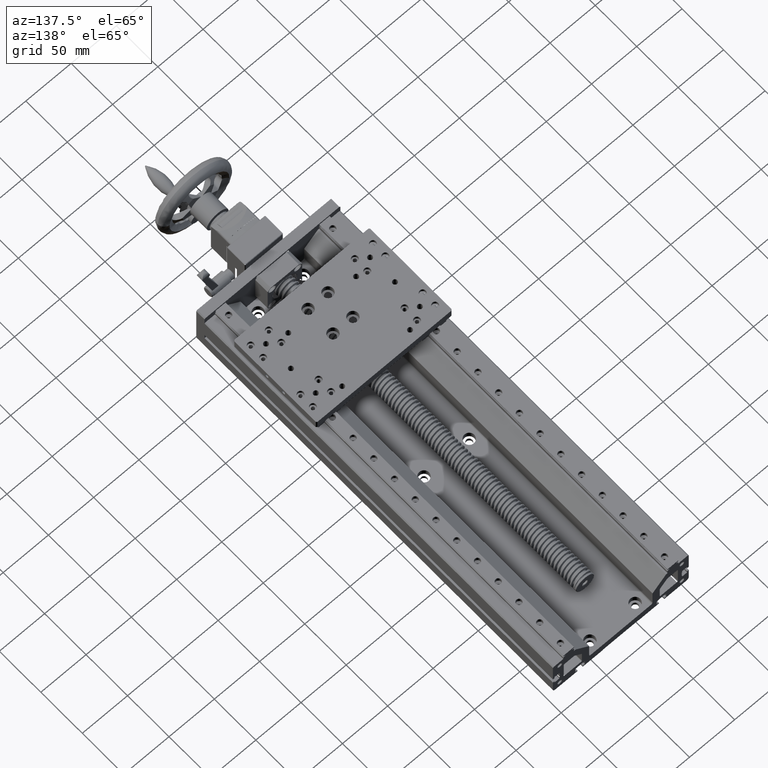
[diagram: clean part render]
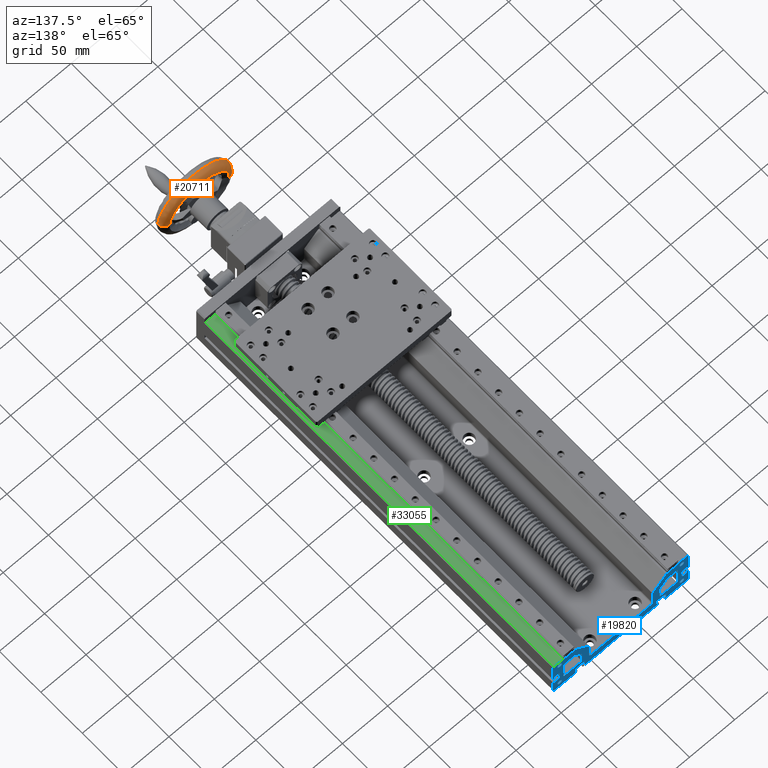
[diagram: same view with three faces highlighted in distinct colors, each labeled with its STEP entity id]
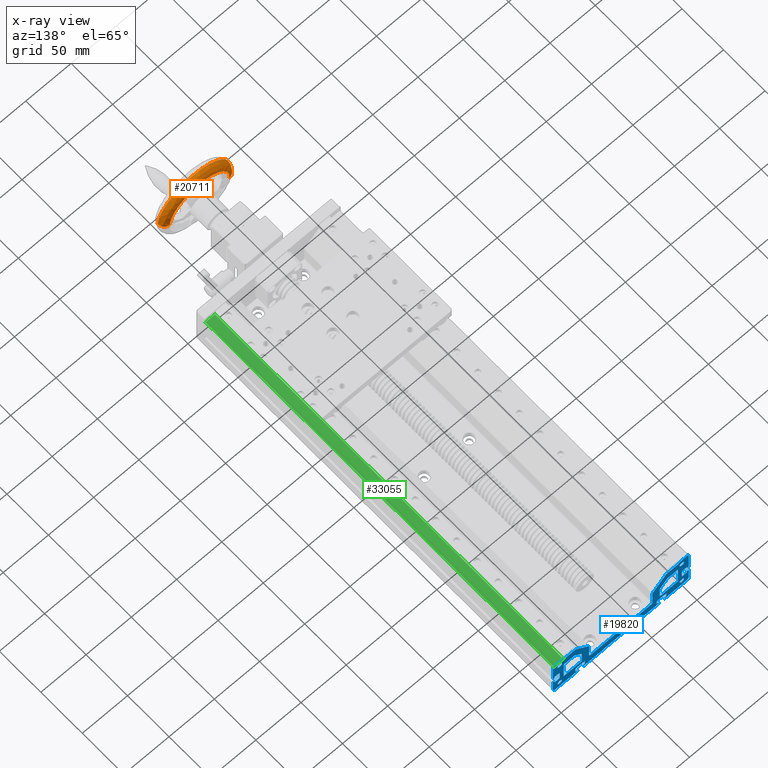
[diagram: x-ray of the same camera — body ghosted, the three highlighted faces saturated]
A machine part, auxiliary view with three faces highlighted in distinct colors.
The next image is the same camera in x-ray (body ghosted, the three faces saturated) — at least one of them is partly hidden behind the body in this view.
Their STEP definitions:

[orange] entity #20711 — the highlighted face is a freeform B-spline surface patch.
#783 = DIRECTION ( 'NONE',  ( 0.9971426874464437429, -3.965082230804125092E-15, 0.07554112040527212468 ) ) ;
#813 = AXIS2_PLACEMENT_3D ( 'NONE', #6247, #28965, #32211 ) ;
#1149 = CARTESIAN_POINT ( 'NONE',  ( 12.05922801789509435, -228.0472645979108393, 15.52164481621319680 ) ) ;
#2467 = CARTESIAN_POINT ( 'NONE',  ( -67.71218697782040863, -228.0472645979104982, 9.478355183791437710 ) ) ;
#4844 = CIRCLE ( 'NONE', #32448, 7.000000000000008882 ) ;
#4948 = DIRECTION ( 'NONE',  ( -0.07554112040527195815, 7.702172233337022513E-16, 0.9971426874464437429 ) ) ;
#5193 = CARTESIAN_POINT ( 'NONE',  ( -60.73218816569530532, -228.0472645979105266, 10.00714302662834143 ) ) ;
#6169 = CARTESIAN_POINT ( 'NONE',  ( 12.05922801789509968, -228.0472645979108677, 15.52164481621319503 ) ) ;
#6247 = CARTESIAN_POINT ( 'NONE',  ( -27.82647947996266069, -228.0472645979106687, 12.50000000000231459 ) ) ;
#6442 = CARTESIAN_POINT ( 'NONE',  ( -27.82647947996263227, -221.0472647591210205, 12.50000000000231282 ) ) ;
#6898 = VERTEX_POINT ( 'NONE', #43928 ) ;
#7803 = ORIENTED_EDGE ( 'NONE', *, *, #48348, .T. ) ;
#9621 = CARTESIAN_POINT ( 'NONE',  ( 0.09478630676189749027, -221.0472647591211057, 80.80738387241629539 ) ) ;
#9860 = CARTESIAN_POINT ( 'NONE',  ( -73.75547661024216950, -228.0472645979104698, 89.24977017950692471 ) ) ;
#10892 = DIRECTION ( 'NONE',  ( -4.298706452838559615E-15, -1.000000000000000000, 4.467646678869439002E-16 ) ) ;
#13810 = CARTESIAN_POINT ( 'NONE',  ( -65.71962710585908951, -221.0472647591207931, 75.82144295283032420 ) ) ;
#14840 = DIRECTION ( 'NONE',  ( -0.9971426874464436318, 4.205198804613674299E-15, -0.07554112040527194427 ) ) ;
#15985 = AXIS2_PLACEMENT_3D ( 'NONE', #5193, #4948, #32768 ) ;
#16807 = CARTESIAN_POINT ( 'NONE',  ( 5.080727226347871550, -221.0472647591211626, 14.99297045979529841 ) ) ;
#17043 = CARTESIAN_POINT ( 'NONE',  ( 9.168820025203908486, -221.0481446440469142, 15.30267449135888214 ) ) ;
#17508 = ORIENTED_EDGE ( 'NONE', *, *, #33013, .F. ) ;
#17509 = CIRCLE ( 'NONE', #15985, 7.000000000000005329 ) ;
#19958 = VERTEX_POINT ( 'NONE', #1149 ) ;
#20711 = ADVANCED_FACE ( 'NONE', ( #35603 ), #31368, .T. ) ;
#20730 = CARTESIAN_POINT ( 'NONE',  ( -64.82177898512915704, -221.0481446440465731, 9.697325508645741721 ) ) ;
#20979 = CARTESIAN_POINT ( 'NONE',  ( -73.75547661024214108, -223.9474572739715370, 89.24977017950695313 ) ) ;
#22172 = VERTEX_POINT ( 'NONE', #35321 ) ;
#22363 = ORIENTED_EDGE ( 'NONE', *, *, #38236, .T. ) ;
#22732 = EDGE_LOOP ( 'NONE', ( #17508, #22363, #23731, #7803 ) ) ;
#22980 = DIRECTION ( 'NONE',  ( 0.07554112040527208305, -7.702172233337029416E-16, -0.9971426874464437429 ) ) ;
#23731 = ORIENTED_EDGE ( 'NONE', *, *, #38501, .T. ) ;
#24321 = VERTEX_POINT ( 'NONE', #47518 ) ;
#24699 = CARTESIAN_POINT ( 'NONE',  ( -67.71218697782040863, -223.9474572739716223, 9.478355183791435934 ) ) ;
#24948 = CARTESIAN_POINT ( 'NONE',  ( 6.015938385473341476, -228.0472645979107824, 95.29305981192871400 ) ) ;
#26042 = CIRCLE ( 'NONE', #813, 40.00000000000000000 ) ;
#28656 = CARTESIAN_POINT ( 'NONE',  ( 3.563471042490767626, -221.0481446440468574, 89.29327350169195654 ) ) ;
#28965 = DIRECTION ( 'NONE',  ( 4.298706452838559615E-15, 1.000000000000000000, -4.467646678869439002E-16 ) ) ;
#30413 = CARTESIAN_POINT ( 'NONE',  ( 5.079229205769982158, -228.0472645979108393, 14.99285697337629131 ) ) ;
#31368 =( BOUNDED_SURFACE ( )  B_SPLINE_SURFACE ( 3, 3, ( 
 ( #43492, #13810, #9621, #16807 ),
 ( #20730, #35840, #28656, #17043 ),
 ( #24699, #20979, #43982, #36077 ),
 ( #2467, #9860, #24948, #6169 ) ),
 .UNSPECIFIED., .F., .F., .F. ) 
 B_SPLINE_SURFACE_WITH_KNOTS ( ( 4, 4 ),
 ( 4, 4 ),
 ( 0.000000000000000000, 1.000000000000000000 ),
 ( 0.000000000000000000, 1.000000000000000000 ),
 .UNSPECIFIED. ) 
 GEOMETRIC_REPRESENTATION_ITEM ( )  RATIONAL_B_SPLINE_SURFACE ( (
 ( 1.000000000000000000, 0.3333333333333334259, 0.3333333333333334259, 1.000000000000000000),
 ( 0.8047884369257838344, 0.2682628123085946670, 0.2682628123085946670, 0.8047884369257838344),
 ( 0.8047884369257838344, 0.2682628123085946670, 0.2682628123085946670, 0.8047884369257838344),
 ( 1.000000000000000000, 0.3333333333333334259, 0.3333333333333334259, 1.000000000000000000) ) ) 
 REPRESENTATION_ITEM ( '' )  SURFACE ( )  );
#32211 = DIRECTION ( 'NONE',  ( -0.9971426874464437429, 4.163336342344337027E-15, -0.07554112040527191652 ) ) ;
#32448 = AXIS2_PLACEMENT_3D ( 'NONE', #30413, #22980, #783 ) ;
#32768 = DIRECTION ( 'NONE',  ( -0.9971426874464437429, 3.965082230804127459E-15, -0.07554112040527190264 ) ) ;
#33013 = EDGE_CURVE ( 'NONE', #6898, #19958, #4844, .T. ) ;
#33309 = CIRCLE ( 'NONE', #48347, 33.00150231325243766 ) ;
#35321 = CARTESIAN_POINT ( 'NONE',  ( -67.71218697782040863, -228.0472645979104982, 9.478355183791437710 ) ) ;
#35603 = FACE_OUTER_BOUND ( 'NONE', #22732, .T. ) ;
#35840 = CARTESIAN_POINT ( 'NONE',  ( -70.42712796784229567, -221.0481446440465447, 83.68792451897881790 ) ) ;
#36077 = CARTESIAN_POINT ( 'NONE',  ( 12.05922801789511389, -223.9474572739719918, 15.52164481621319325 ) ) ;
#38236 = EDGE_CURVE ( 'NONE', #6898, #24321, #33309, .T. ) ;
#38501 = EDGE_CURVE ( 'NONE', #24321, #22172, #17509, .T. ) ;
#43492 = CARTESIAN_POINT ( 'NONE',  ( -60.73368618627313253, -221.0472647591208784, 10.00702954020932722 ) ) ;
#43928 = CARTESIAN_POINT ( 'NONE',  ( 5.080727226347869774, -221.0472647591211341, 14.99297045979530019 ) ) ;
#43982 = CARTESIAN_POINT ( 'NONE',  ( 6.015938385473354799, -223.9474572739719065, 95.29305981192869979 ) ) ;
#47518 = CARTESIAN_POINT ( 'NONE',  ( -60.73368618633722349, -221.0472647591208784, 10.00702954020447244 ) ) ;
#48347 = AXIS2_PLACEMENT_3D ( 'NONE', #6442, #10892, #14840 ) ;
#48348 = EDGE_CURVE ( 'NONE', #22172, #19958, #26042, .T. ) ;

[blue] entity #19820 — the highlighted planar face has unit normal (0, 1, -0).
#73 = VERTEX_POINT ( 'NONE', #42532 ) ;
#110 = CARTESIAN_POINT ( 'NONE',  ( -78.07647947980072445, 286.9527354020913776, -18.20000000000199236 ) ) ;
#158 = LINE ( 'NONE', #15204, #34197 ) ;
#160 = EDGE_CURVE ( 'NONE', #73, #30654, #17719, .T. ) ;
#178 = AXIS2_PLACEMENT_3D ( 'NONE', #16081, #39791, #32368 ) ;
#218 = CARTESIAN_POINT ( 'NONE',  ( 7.466413739012578432, 286.9527354020910934, 9.792893218810050371 ) ) ;
#244 = CARTESIAN_POINT ( 'NONE',  ( -79.55440154115561313, 286.9527354020913776, 13.49999999999873523 ) ) ;
#393 = ORIENTED_EDGE ( 'NONE', *, *, #35202, .F. ) ;
#513 = EDGE_CURVE ( 'NONE', #47177, #29346, #17637, .T. ) ;
#750 = DIRECTION ( 'NONE',  ( 1.000000000000000000, -3.491481338843133355E-15, -3.491481338843133355E-15 ) ) ;
#1031 = DIRECTION ( 'NONE',  ( 3.491481338843133750E-15, 2.438088387897968177E-29, 1.000000000000000000 ) ) ;
#1048 = ORIENTED_EDGE ( 'NONE', *, *, #16975, .T. ) ;
#1110 = EDGE_LOOP ( 'NONE', ( #22424, #42174 ) ) ;
#1156 = EDGE_CURVE ( 'NONE', #40404, #47177, #17476, .T. ) ;
#1275 = CARTESIAN_POINT ( 'NONE',  ( -95.12647947979813523, 286.9527354020914345, 2.999999999998337330 ) ) ;
#1315 = CARTESIAN_POINT ( 'NONE',  ( -75.82647947980069603, 286.9527354020913776, -20.00000000000135003 ) ) ;
#1317 = DIRECTION ( 'NONE',  ( 3.491481338843133355E-15, 2.438088387897967896E-29, 1.000000000000000000 ) ) ;
#1371 = CIRCLE ( 'NONE', #16328, 2.499999999999502620 ) ;
#1387 = CARTESIAN_POINT ( 'NONE',  ( -95.32647947979539538, 286.9527354020914345, -15.50000000000117950 ) ) ;
#1395 = VECTOR ( 'NONE', #4348, 1000.000000000000000 ) ;
#1436 = ORIENTED_EDGE ( 'NONE', *, *, #41872, .T. ) ;
#1505 = ORIENTED_EDGE ( 'NONE', *, *, #4890, .T. ) ;
#1619 = EDGE_LOOP ( 'NONE', ( #48728, #27255 ) ) ;
#1752 = CARTESIAN_POINT ( 'NONE',  ( 23.90144258156023938, 286.9527354020910366, 14.49999999999818101 ) ) ;
#1763 = CARTESIAN_POINT ( 'NONE',  ( -63.82647947979924652, 286.9527354020913208, 9.085786437626808265 ) ) ;
#1782 = CIRCLE ( 'NONE', #32539, 2.499999999999502620 ) ;
#1798 = VERTEX_POINT ( 'NONE', #6337 ) ;
#1850 = VECTOR ( 'NONE', #35671, 1000.000000000000000 ) ;
#1910 = ORIENTED_EDGE ( 'NONE', *, *, #23344, .T. ) ;
#1924 = CARTESIAN_POINT ( 'NONE',  ( -95.62647947979813523, 286.9527354020914345, 2.999999999998337330 ) ) ;
#1958 = CIRCLE ( 'NONE', #29549, 1.999999999999446665 ) ;
#2003 = EDGE_CURVE ( 'NONE', #6882, #32818, #38208, .T. ) ;
#2018 = VECTOR ( 'NONE', #37396, 1000.000000000000000 ) ;
#2050 = CARTESIAN_POINT ( 'NONE',  ( -75.82647947980069603, 286.9527354020913776, -12.30000000000153193 ) ) ;
#2109 = ORIENTED_EDGE ( 'NONE', *, *, #9573, .T. ) ;
#2142 = VERTEX_POINT ( 'NONE', #24810 ) ;
#2151 = VECTOR ( 'NONE', #48377, 1000.000000000000000 ) ;
#2237 = DIRECTION ( 'NONE',  ( 3.491481338843133355E-15, 1.000000000000000000, -3.657132581846951845E-29 ) ) ;
#2261 = VERTEX_POINT ( 'NONE', #26050 ) ;
#2350 = DIRECTION ( 'NONE',  ( -1.000000000000000000, 3.491481338843133750E-15, 3.491481338843133750E-15 ) ) ;
#2401 = LINE ( 'NONE', #5855, #12519 ) ;
#2446 = ORIENTED_EDGE ( 'NONE', *, *, #40347, .F. ) ;
#2609 = EDGE_CURVE ( 'NONE', #8498, #16444, #17951, .T. ) ;
#2614 = CARTESIAN_POINT ( 'NONE',  ( -95.62647947979807839, 286.9527354020914345, 5.249999999998422595 ) ) ;
#2897 = AXIS2_PLACEMENT_3D ( 'NONE', #41290, #41534, #7676 ) ;
#2944 = EDGE_CURVE ( 'NONE', #8620, #46515, #25868, .T. ) ;
#2945 = VECTOR ( 'NONE', #14440, 1000.000000000000000 ) ;
#2996 = LINE ( 'NONE', #3243, #47940 ) ;
#3087 = DIRECTION ( 'NONE',  ( -3.491481338843133355E-15, -2.438088387897967896E-29, -1.000000000000000000 ) ) ;
#3189 = VERTEX_POINT ( 'NONE', #47115 ) ;
#3218 = CARTESIAN_POINT ( 'NONE',  ( -62.82647947979874914, 286.9527354020913208, -8.000000000002671641 ) ) ;
#3243 = CARTESIAN_POINT ( 'NONE',  ( 11.92352052020112474, 286.9527354020910934, -18.20000000000199236 ) ) ;
#3273 = DIRECTION ( 'NONE',  ( -1.000000000000000000, 3.491481338843133355E-15, 3.491481338843133355E-15 ) ) ;
#3286 = CARTESIAN_POINT ( 'NONE',  ( 35.67352052020311959, 286.9527354020909797, 25.99999999999802469 ) ) ;
#3367 = CARTESIAN_POINT ( 'NONE',  ( 14.17352052020109987, 286.9527354020910366, -12.80000000000036664 ) ) ;
#3384 = CARTESIAN_POINT ( 'NONE',  ( 47.17352052020301301, 286.9527354020909229, 24.99999999999857891 ) ) ;
#3437 = VECTOR ( 'NONE', #19275, 1000.000000000000000 ) ;
#3769 = CIRCLE ( 'NONE', #17160, 0.9999999999994093614 ) ;
#3776 = LINE ( 'NONE', #23015, #21777 ) ;
#3812 = LINE ( 'NONE', #110, #29448 ) ;
#3851 = ORIENTED_EDGE ( 'NONE', *, *, #15484, .T. ) ;
#3860 = ORIENTED_EDGE ( 'NONE', *, *, #160, .T. ) ;
#3874 = VERTEX_POINT ( 'NONE', #3218 ) ;
#3875 = LINE ( 'NONE', #26851, #28194 ) ;
#3916 = DIRECTION ( 'NONE',  ( -1.000000000000000000, 3.491481338843133355E-15, 3.491481338843133355E-15 ) ) ;
#3960 = VERTEX_POINT ( 'NONE', #29382 ) ;
#3965 = CIRCLE ( 'NONE', #17370, 1.000000000000611511 ) ;
#3983 = LINE ( 'NONE', #19024, #26955 ) ;
#4037 = CARTESIAN_POINT ( 'NONE',  ( 16.17352052020071085, 286.9527354020910366, -7.000000000001449507 ) ) ;
#4038 = ORIENTED_EDGE ( 'NONE', *, *, #34276, .T. ) ;
#4054 = DIRECTION ( 'NONE',  ( 0.7071067811866339481, -2.468850131082593115E-15, -0.7071067811864610864 ) ) ;
#4072 = VERTEX_POINT ( 'NONE', #22449 ) ;
#4081 = LINE ( 'NONE', #42127, #28864 ) ;
#4150 = EDGE_LOOP ( 'NONE', ( #34279, #393, #28374, #45180, #33484, #12692, #42073, #10711, #23051, #39514 ) ) ;
#4194 = LINE ( 'NONE', #30633, #9936 ) ;
#4292 = LINE ( 'NONE', #41614, #39998 ) ;
#4348 = DIRECTION ( 'NONE',  ( 1.000000000000000000, -3.491481338843133355E-15, -3.491481338843133355E-15 ) ) ;
#4466 = LINE ( 'NONE', #23475, #29726 ) ;
#4554 = LINE ( 'NONE', #35667, #48881 ) ;
#4797 = CARTESIAN_POINT ( 'NONE',  ( 8.173520520200760586, 286.9527354020910934, 9.085786437625031908 ) ) ;
#4825 = DIRECTION ( 'NONE',  ( 6.938893903909148465E-15, 0.000000000000000000, 1.000000000000000000 ) ) ;
#4887 = VERTEX_POINT ( 'NONE', #38610 ) ;
#4890 = EDGE_CURVE ( 'NONE', #32106, #7336, #39561, .T. ) ;
#4895 = DIRECTION ( 'NONE',  ( 5.551115123126887107E-15, 0.000000000000000000, 1.000000000000000000 ) ) ;
#4897 = EDGE_CURVE ( 'NONE', #4937, #14890, #1782, .T. ) ;
#4937 = VERTEX_POINT ( 'NONE', #9635 ) ;
#5071 = CARTESIAN_POINT ( 'NONE',  ( -78.07647947980072445, 286.9527354020913776, -12.80000000000036664 ) ) ;
#5072 = DIRECTION ( 'NONE',  ( 3.491481338843133355E-15, 1.000000000000000000, -3.657132581846951845E-29 ) ) ;
#5083 = DIRECTION ( 'NONE',  ( 0.7071067811864865105, -2.468850131082026713E-15, 0.7071067811866086350 ) ) ;
#5139 = CARTESIAN_POINT ( 'NONE',  ( -75.82647947980069603, 286.9527354020913776, -20.00000000000135003 ) ) ;
#5222 = CARTESIAN_POINT ( 'NONE',  ( 35.17352052019895581, 286.9527354020909797, 13.49999999999873523 ) ) ;
#5306 = VERTEX_POINT ( 'NONE', #22442 ) ;
#5441 = DIRECTION ( 'NONE',  ( 1.000000000000000000, -3.491481338843133355E-15, -3.491481338843133355E-15 ) ) ;
#5503 = ORIENTED_EDGE ( 'NONE', *, *, #23767, .T. ) ;
#5558 = DIRECTION ( 'NONE',  ( 1.000000000000000000, -3.491481338843133355E-15, -3.491481338843133355E-15 ) ) ;
#5697 = VERTEX_POINT ( 'NONE', #24644 ) ;
#5727 = LINE ( 'NONE', #12912, #10548 ) ;
#5855 = CARTESIAN_POINT ( 'NONE',  ( -67.57647947980072445, 286.9527354020913776, -12.80000000000036664 ) ) ;
#5911 = CARTESIAN_POINT ( 'NONE',  ( -95.62647947979813523, 286.9527354020914345, 2.999999999998337330 ) ) ;
#5933 = ORIENTED_EDGE ( 'NONE', *, *, #2003, .T. ) ;
#5941 = ORIENTED_EDGE ( 'NONE', *, *, #9382, .T. ) ;
#5942 = EDGE_CURVE ( 'NONE', #31677, #31870, #46840, .T. ) ;
#5950 = ORIENTED_EDGE ( 'NONE', *, *, #513, .F. ) ;
#5978 = DIRECTION ( 'NONE',  ( 3.469446951954574233E-15, 0.000000000000000000, 1.000000000000000000 ) ) ;
#6016 = ORIENTED_EDGE ( 'NONE', *, *, #2944, .T. ) ;
#6119 = CARTESIAN_POINT ( 'NONE',  ( -91.32647947979872072, 286.9527354020914345, 24.49999999999796785 ) ) ;
#6128 = LINE ( 'NONE', #14022, #27223 ) ;
#6147 = VERTEX_POINT ( 'NONE', #6236 ) ;
#6236 = CARTESIAN_POINT ( 'NONE',  ( 39.97352052020042379, 286.9527354020909797, -5.250000000001975309 ) ) ;
#6273 = DIRECTION ( 'NONE',  ( -1.000000000000000000, 3.491481338843133355E-15, 3.491481338843133355E-15 ) ) ;
#6274 = DIRECTION ( 'NONE',  ( 1.000000000000000000, -3.491481338843133750E-15, -3.491481338843133750E-15 ) ) ;
#6337 = CARTESIAN_POINT ( 'NONE',  ( 14.17352052020109987, 286.9527354020910366, -18.20000000000199236 ) ) ;
#6524 = DIRECTION ( 'NONE',  ( 3.491481338843133355E-15, 1.000000000000000000, -3.657132581846951845E-29 ) ) ;
#6630 = VERTEX_POINT ( 'NONE', #25686 ) ;
#6696 = DIRECTION ( 'NONE',  ( 3.469446951955663255E-15, 0.000000000000000000, 1.000000000000000000 ) ) ;
#6737 = AXIS2_PLACEMENT_3D ( 'NONE', #46803, #12920, #23784 ) ;
#6882 = VERTEX_POINT ( 'NONE', #6119 ) ;
#6961 = DIRECTION ( 'NONE',  ( -3.491481338843133750E-15, -2.438088387897968177E-29, -1.000000000000000000 ) ) ;
#6985 = CARTESIAN_POINT ( 'NONE',  ( 39.97352052020042379, 286.9527354020909797, -3.000000000001890044 ) ) ;
#7090 = CARTESIAN_POINT ( 'NONE',  ( 44.17352052020112296, 286.9527354020909797, -17.00000000000123634 ) ) ;
#7121 = CARTESIAN_POINT ( 'NONE',  ( -75.82647947980069603, 286.9527354020913776, -18.20000000000199236 ) ) ;
#7190 = CARTESIAN_POINT ( 'NONE',  ( -71.11937269861107325, 286.9527354020913776, 6.479184719829333972 ) ) ;
#7205 = VERTEX_POINT ( 'NONE', #38962 ) ;
#7240 = CARTESIAN_POINT ( 'NONE',  ( -95.32647947979533853, 286.9527354020914345, -13.00000000000167688 ) ) ;
#7313 = DIRECTION ( 'NONE',  ( 1.000000000000000000, -3.491481338843133355E-15, -3.491481338843133355E-15 ) ) ;
#7336 = VERTEX_POINT ( 'NONE', #2614 ) ;
#7417 = AXIS2_PLACEMENT_3D ( 'NONE', #17321, #32403, #28695 ) ;
#7482 = CARTESIAN_POINT ( 'NONE',  ( -89.82647947979927494, 286.9527354020914345, -7.000000000001449507 ) ) ;
#7484 = DIRECTION ( 'NONE',  ( 3.491481338843133355E-15, 1.000000000000000000, -3.657132581846951845E-29 ) ) ;
#7492 = CARTESIAN_POINT ( 'NONE',  ( -78.84729475996738302, 286.9527354020913776, 14.20710678118375370 ) ) ;
#7637 = DIRECTION ( 'NONE',  ( 3.491481338843133355E-15, 1.000000000000000000, -3.657132581846951845E-29 ) ) ;
#7676 = DIRECTION ( 'NONE',  ( 4.625929269271396181E-15, 0.000000000000000000, 1.000000000000000000 ) ) ;
#7733 = VECTOR ( 'NONE', #13431, 1000.000000000000000 ) ;
#7837 = DIRECTION ( 'NONE',  ( 3.491481338843133750E-15, 2.438088387897968177E-29, 1.000000000000000000 ) ) ;
#7860 = CARTESIAN_POINT ( 'NONE',  ( -95.32647947979532432, 286.9527354020914345, -10.50000000000217426 ) ) ;
#7879 = ORIENTED_EDGE ( 'NONE', *, *, #13685, .T. ) ;
#7948 = EDGE_CURVE ( 'NONE', #31870, #4072, #24905, .T. ) ;
#7955 = EDGE_CURVE ( 'NONE', #19744, #34162, #6128, .T. ) ;
#8049 = ORIENTED_EDGE ( 'NONE', *, *, #18833, .F. ) ;
#8054 = FACE_BOUND ( 'NONE', #40804, .T. ) ;
#8163 = EDGE_CURVE ( 'NONE', #23867, #18423, #8312, .T. ) ;
#8269 = CARTESIAN_POINT ( 'NONE',  ( 35.67352052020128639, 286.9527354020909797, 24.49999999999796785 ) ) ;
#8312 = LINE ( 'NONE', #42671, #34303 ) ;
#8332 = DIRECTION ( 'NONE',  ( -3.491481338843133750E-15, -2.438088387897968177E-29, -1.000000000000000000 ) ) ;
#8415 = VERTEX_POINT ( 'NONE', #44617 ) ;
#8482 = CARTESIAN_POINT ( 'NONE',  ( -69.82647947980069603, 286.9527354020913776, -20.00000000000135003 ) ) ;
#8498 = VERTEX_POINT ( 'NONE', #45856 ) ;
#8525 = EDGE_CURVE ( 'NONE', #43800, #12441, #4081, .T. ) ;
#8588 = ORIENTED_EDGE ( 'NONE', *, *, #43333, .F. ) ;
#8620 = VERTEX_POINT ( 'NONE', #9705 ) ;
#8671 = ORIENTED_EDGE ( 'NONE', *, *, #47207, .T. ) ;
#8831 = VERTEX_POINT ( 'NONE', #6985 ) ;
#8834 = DIRECTION ( 'NONE',  ( 3.491481338843133355E-15, 1.000000000000000000, -3.657132581846951845E-29 ) ) ;
#8856 = EDGE_CURVE ( 'NONE', #3960, #47048, #3776, .T. ) ;
#8878 = DIRECTION ( 'NONE',  ( -3.491481338843133355E-15, -1.000000000000000000, 3.657132581846951845E-29 ) ) ;
#8885 = CARTESIAN_POINT ( 'NONE',  ( -60.82647947979930336, 286.9527354020913208, -10.00000000000156319 ) ) ;
#8951 = CARTESIAN_POINT ( 'NONE',  ( -90.82647947979921810, 286.9527354020914345, 13.49999999999873523 ) ) ;
#9077 = DIRECTION ( 'NONE',  ( -1.000000000000000000, 3.491481338843133355E-15, 3.491481338843133355E-15 ) ) ;
#9121 = EDGE_CURVE ( 'NONE', #11778, #8831, #19576, .T. ) ;
#9157 = EDGE_CURVE ( 'NONE', #42287, #28646, #30718, .T. ) ;
#9293 = ORIENTED_EDGE ( 'NONE', *, *, #10077, .T. ) ;
#9356 = CARTESIAN_POINT ( 'NONE',  ( 34.17352052019939634, 286.9527354020909797, 14.49999999999818101 ) ) ;
#9382 = EDGE_CURVE ( 'NONE', #2142, #35574, #48744, .T. ) ;
#9432 = CARTESIAN_POINT ( 'NONE',  ( -69.82647947980069603, 286.9527354020913776, -12.80000000000036664 ) ) ;
#9462 = EDGE_CURVE ( 'NONE', #39284, #24084, #36003, .T. ) ;
#9573 = EDGE_CURVE ( 'NONE', #41228, #10396, #4466, .T. ) ;
#9594 = CARTESIAN_POINT ( 'NONE',  ( -102.8264794797988344, 286.9527354020914913, -3.000000000001890044 ) ) ;
#9606 = CARTESIAN_POINT ( 'NONE',  ( 14.17352052020109987, 286.9527354020910366, -12.80000000000036664 ) ) ;
#9635 = CARTESIAN_POINT ( 'NONE',  ( 39.67352052020284958, 286.9527354020909797, -15.50000000000117950 ) ) ;
#9655 = EDGE_CURVE ( 'NONE', #35504, #29580, #35588, .T. ) ;
#9699 = CARTESIAN_POINT ( 'NONE',  ( -102.8264794797987207, 286.9527354020914913, 24.99999999999857891 ) ) ;
#9705 = CARTESIAN_POINT ( 'NONE',  ( 47.17352052020301301, 286.9527354020909229, 24.99999999999857891 ) ) ;
#9847 = CARTESIAN_POINT ( 'NONE',  ( 45.37352052020010262, 286.9527354020909797, 2.999999999998337330 ) ) ;
#9921 = LINE ( 'NONE', #40818, #21180 ) ;
#9936 = VECTOR ( 'NONE', #750, 1000.000000000000000 ) ;
#9973 = CARTESIAN_POINT ( 'NONE',  ( 20.17352052020110520, 286.9527354020910366, -12.30000000000153193 ) ) ;
#10052 = VECTOR ( 'NONE', #18433, 1000.000000000000000 ) ;
#10077 = EDGE_CURVE ( 'NONE', #28719, #34967, #30285, .T. ) ;
#10226 = CARTESIAN_POINT ( 'NONE',  ( 39.67352052020289932, 286.9527354020909797, -13.00000000000167688 ) ) ;
#10277 = EDGE_CURVE ( 'NONE', #29580, #15283, #45447, .T. ) ;
#10303 = ORIENTED_EDGE ( 'NONE', *, *, #10372, .T. ) ;
#10372 = EDGE_CURVE ( 'NONE', #47584, #10491, #29486, .T. ) ;
#10396 = VERTEX_POINT ( 'NONE', #20298 ) ;
#10399 = CARTESIAN_POINT ( 'NONE',  ( -101.0264794797977572, 286.9527354020914913, -5.250000000001975309 ) ) ;
#10407 = DIRECTION ( 'NONE',  ( -1.000000000000000000, 3.491481338843133750E-15, 3.491481338843133750E-15 ) ) ;
#10491 = VERTEX_POINT ( 'NONE', #1315 ) ;
#10548 = VECTOR ( 'NONE', #16847, 1000.000000000000000 ) ;
#10561 = ORIENTED_EDGE ( 'NONE', *, *, #19760, .T. ) ;
#10669 = ORIENTED_EDGE ( 'NONE', *, *, #8856, .T. ) ;
#10711 = ORIENTED_EDGE ( 'NONE', *, *, #42056, .F. ) ;
#10721 = LINE ( 'NONE', #40623, #24189 ) ;
#10782 = ORIENTED_EDGE ( 'NONE', *, *, #7955, .T. ) ;
#10826 = DIRECTION ( 'NONE',  ( 1.000000000000000000, -3.491481338843133355E-15, -3.491481338843133355E-15 ) ) ;
#10885 = CARTESIAN_POINT ( 'NONE',  ( -70.82647947979825176, 286.9527354020913776, -7.000000000001449507 ) ) ;
#10947 = ORIENTED_EDGE ( 'NONE', *, *, #44491, .T. ) ;
#11011 = ORIENTED_EDGE ( 'NONE', *, *, #33745, .T. ) ;
#11060 = CARTESIAN_POINT ( 'NONE',  ( 39.67352052020296327, 286.9527354020909797, 16.49999999999884892 ) ) ;
#11071 = LINE ( 'NONE', #7121, #45110 ) ;
#11210 = DIRECTION ( 'NONE',  ( 3.491481338843133750E-15, 2.438088387897968177E-29, 1.000000000000000000 ) ) ;
#11225 = VECTOR ( 'NONE', #29745, 1000.000000000000000 ) ;
#11250 = VECTOR ( 'NONE', #28631, 1000.000000000000000 ) ;
#11323 = VERTEX_POINT ( 'NONE', #7860 ) ;
#11434 = EDGE_CURVE ( 'NONE', #12458, #27540, #2401, .T. ) ;
#11561 = ORIENTED_EDGE ( 'NONE', *, *, #26919, .T. ) ;
#11636 = ORIENTED_EDGE ( 'NONE', *, *, #23040, .T. ) ;
#11738 = VECTOR ( 'NONE', #44732, 1000.000000000000000 ) ;
#11778 = VERTEX_POINT ( 'NONE', #34345 ) ;
#12093 = EDGE_CURVE ( 'NONE', #42003, #47796, #41668, .T. ) ;
#12217 = EDGE_CURVE ( 'NONE', #32218, #30497, #32005, .T. ) ;
#12304 = CARTESIAN_POINT ( 'NONE',  ( 39.97352052020042379, 286.9527354020909797, 2.999999999998337330 ) ) ;
#12339 = DIRECTION ( 'NONE',  ( 3.491481338843133355E-15, 2.438088387897967896E-29, 1.000000000000000000 ) ) ;
#12441 = VERTEX_POINT ( 'NONE', #9973 ) ;
#12458 = VERTEX_POINT ( 'NONE', #25058 ) ;
#12519 = VECTOR ( 'NONE', #9077, 1000.000000000000000 ) ;
#12542 = EDGE_CURVE ( 'NONE', #33113, #27146, #35153, .T. ) ;
#12617 = ORIENTED_EDGE ( 'NONE', *, *, #35442, .T. ) ;
#12665 = DIRECTION ( 'NONE',  ( 1.000000000000000000, -3.491481338843133355E-15, -3.491481338843133355E-15 ) ) ;
#12692 = ORIENTED_EDGE ( 'NONE', *, *, #16476, .F. ) ;
#12741 = DIRECTION ( 'NONE',  ( 3.491481338843133355E-15, 2.438088387897967896E-29, 1.000000000000000000 ) ) ;
#12765 = EDGE_CURVE ( 'NONE', #46515, #29606, #20780, .T. ) ;
#12865 = DIRECTION ( 'NONE',  ( 2.775557561563443554E-15, 0.000000000000000000, 1.000000000000000000 ) ) ;
#12912 = CARTESIAN_POINT ( 'NONE',  ( 20.17352052020110520, 286.9527354020910366, -12.80000000000036664 ) ) ;
#12920 = DIRECTION ( 'NONE',  ( 3.491481338843133355E-15, 1.000000000000000000, -3.657132581846951845E-29 ) ) ;
#12938 = DIRECTION ( 'NONE',  ( 3.469446951953484816E-15, 0.000000000000000000, 1.000000000000000000 ) ) ;
#13053 = VERTEX_POINT ( 'NONE', #13333 ) ;
#13130 = DIRECTION ( 'NONE',  ( 3.491481338843133355E-15, 2.438088387897967896E-29, 1.000000000000000000 ) ) ;
#13208 = ORIENTED_EDGE ( 'NONE', *, *, #20924, .T. ) ;
#13333 = CARTESIAN_POINT ( 'NONE',  ( -8.326479479800696026, 286.9527354020911503, -19.50000000000251532 ) ) ;
#13431 = DIRECTION ( 'NONE',  ( -1.000000000000000000, 3.491481338843133355E-15, 3.491481338843133355E-15 ) ) ;
#13485 = CARTESIAN_POINT ( 'NONE',  ( -69.82647947980069603, 286.9527354020913776, -12.80000000000036664 ) ) ;
#13599 = VERTEX_POINT ( 'NONE', #22576 ) ;
#13661 = VECTOR ( 'NONE', #12339, 1000.000000000000000 ) ;
#13679 = LINE ( 'NONE', #25785, #40800 ) ;
#13685 = EDGE_CURVE ( 'NONE', #5697, #5306, #17102, .T. ) ;
#13690 = LINE ( 'NONE', #43378, #19252 ) ;
#13739 = CARTESIAN_POINT ( 'NONE',  ( 20.17352052020110520, 286.9527354020910366, -18.20000000000199236 ) ) ;
#13833 = CARTESIAN_POINT ( 'NONE',  ( -101.0264794797977572, 286.9527354020914913, -5.250000000001975309 ) ) ;
#13854 = EDGE_CURVE ( 'NONE', #34967, #37455, #14365, .T. ) ;
#13910 = CARTESIAN_POINT ( 'NONE',  ( -69.82647947980069603, 286.9527354020913776, -20.00000000000135003 ) ) ;
#13935 = DIRECTION ( 'NONE',  ( 3.127883653608441463E-14, -1.457807998849330351E-28, -1.000000000000000000 ) ) ;
#14015 = CARTESIAN_POINT ( 'NONE',  ( -75.82647947980069603, 286.9527354020913776, -18.20000000000199236 ) ) ;
#14022 = CARTESIAN_POINT ( 'NONE',  ( 20.17352052020110520, 286.9527354020910366, -20.00000000000135003 ) ) ;
#14097 = VECTOR ( 'NONE', #48271, 1000.000000000000000 ) ;
#14101 = VERTEX_POINT ( 'NONE', #1275 ) ;
#14110 = CARTESIAN_POINT ( 'NONE',  ( 5.173520520200702855, 286.9527354020910934, -10.00000000000156319 ) ) ;
#14138 = EDGE_CURVE ( 'NONE', #2261, #42079, #23494, .T. ) ;
#14223 = LINE ( 'NONE', #13739, #2151 ) ;
#14244 = ORIENTED_EDGE ( 'NONE', *, *, #39769, .F. ) ;
#14307 = ORIENTED_EDGE ( 'NONE', *, *, #36989, .T. ) ;
#14347 = DIRECTION ( 'NONE',  ( 3.491481338843133355E-15, 2.438088387897967896E-29, 1.000000000000000000 ) ) ;
#14351 = ORIENTED_EDGE ( 'NONE', *, *, #36627, .T. ) ;
#14365 = LINE ( 'NONE', #37114, #24935 ) ;
#14421 = DIRECTION ( 'NONE',  ( 0.000000000000000000, 0.000000000000000000, 1.000000000000000000 ) ) ;
#14440 = DIRECTION ( 'NONE',  ( -1.000000000000000000, 3.491481338843133355E-15, 3.491481338843133355E-15 ) ) ;
#14851 = CARTESIAN_POINT ( 'NONE',  ( -99.82647947979933178, 286.9527354020914913, -20.00000000000135003 ) ) ;
#14890 = VERTEX_POINT ( 'NONE', #16205 ) ;
#14978 = PLANE ( 'NONE',  #21109 ) ;
#15025 = CARTESIAN_POINT ( 'NONE',  ( 15.46641373901258554, 286.9527354020910366, 6.479184719824004901 ) ) ;
#15036 = CARTESIAN_POINT ( 'NONE',  ( 34.17352052020072506, 286.9527354020909797, -8.000000000002671641 ) ) ;
#15161 = CARTESIAN_POINT ( 'NONE',  ( -90.82647947979927494, 286.9527354020914345, -7.000000000001449507 ) ) ;
#15198 = EDGE_CURVE ( 'NONE', #20038, #8620, #42051, .T. ) ;
#15204 = CARTESIAN_POINT ( 'NONE',  ( -69.82647947980069603, 286.9527354020913776, -12.30000000000153193 ) ) ;
#15205 = DIRECTION ( 'NONE',  ( 3.491481338843133355E-15, 1.000000000000000000, -3.657132581846951845E-29 ) ) ;
#15216 = EDGE_CURVE ( 'NONE', #10396, #46641, #25570, .T. ) ;
#15265 = CIRCLE ( 'NONE', #21569, 1.999999999999446665 ) ;
#15283 = VERTEX_POINT ( 'NONE', #5222 ) ;
#15423 = ORIENTED_EDGE ( 'NONE', *, *, #7948, .T. ) ;
#15448 = CARTESIAN_POINT ( 'NONE',  ( 47.17352052020123665, 286.9527354020909229, 2.999999999998337330 ) ) ;
#15467 = FACE_BOUND ( 'NONE', #1619, .T. ) ;
#15484 = EDGE_CURVE ( 'NONE', #37455, #8415, #2996, .T. ) ;
#15491 = ORIENTED_EDGE ( 'NONE', *, *, #26705, .T. ) ;
#15519 = DIRECTION ( 'NONE',  ( 3.469446951949115315E-15, 0.000000000000000000, 1.000000000000000000 ) ) ;
#15527 = CARTESIAN_POINT ( 'NONE',  ( -102.8264794797988344, 286.9527354020914913, -3.000000000001890044 ) ) ;
#15613 = VERTEX_POINT ( 'NONE', #41520 ) ;
#15623 = ORIENTED_EDGE ( 'NONE', *, *, #24377, .T. ) ;
#15678 = AXIS2_PLACEMENT_3D ( 'NONE', #7240, #7484, #26029 ) ;
#15705 = CARTESIAN_POINT ( 'NONE',  ( -78.07647947980072445, 286.9527354020913776, -18.20000000000199236 ) ) ;
#15797 = ORIENTED_EDGE ( 'NONE', *, *, #37460, .F. ) ;
#15839 = CARTESIAN_POINT ( 'NONE',  ( 15.17352052020137876, 286.9527354020910366, 5.772077938640762795 ) ) ;
#16081 = CARTESIAN_POINT ( 'NONE',  ( -71.82647947979926073, 286.9527354020913776, 5.772077938644315509 ) ) ;
#16154 = ORIENTED_EDGE ( 'NONE', *, *, #17038, .T. ) ;
#16205 = CARTESIAN_POINT ( 'NONE',  ( 39.67352052020290643, 286.9527354020909797, -10.50000000000217426 ) ) ;
#16265 = VECTOR ( 'NONE', #1031, 1000.000000000000000 ) ;
#16274 = CARTESIAN_POINT ( 'NONE',  ( -67.57647947980072445, 286.9527354020913776, -12.80000000000036664 ) ) ;
#16290 = DIRECTION ( 'NONE',  ( 3.469446951954574233E-15, 0.000000000000000000, 1.000000000000000000 ) ) ;
#16307 = CARTESIAN_POINT ( 'NONE',  ( -67.57647947980072445, 286.9527354020913776, -18.20000000000199236 ) ) ;
#16328 = AXIS2_PLACEMENT_3D ( 'NONE', #46752, #2237, #12865 ) ;
#16396 = DIRECTION ( 'NONE',  ( 3.491481338843133355E-15, 1.000000000000000000, -3.657132581846951845E-29 ) ) ;
#16444 = VERTEX_POINT ( 'NONE', #34970 ) ;
#16476 = EDGE_CURVE ( 'NONE', #36153, #46507, #35928, .T. ) ;
#16716 = DIRECTION ( 'NONE',  ( 3.491481338843133355E-15, 1.000000000000000000, -3.657132581846951845E-29 ) ) ;
#16763 = AXIS2_PLACEMENT_3D ( 'NONE', #10226, #47817, #17385 ) ;
#16847 = DIRECTION ( 'NONE',  ( -1.000000000000000000, 3.491481338843133355E-15, 3.491481338843133355E-15 ) ) ;
#16896 = ORIENTED_EDGE ( 'NONE', *, *, #14138, .T. ) ;
#16903 = LINE ( 'NONE', #31997, #23136 ) ;
#16913 = ORIENTED_EDGE ( 'NONE', *, *, #37807, .T. ) ;
#16917 = CARTESIAN_POINT ( 'NONE',  ( 7.173520520200760586, 286.9527354020910934, 9.085786437625031908 ) ) ;
#16953 = CARTESIAN_POINT ( 'NONE',  ( 11.92352052020112474, 286.9527354020910934, -12.80000000000036664 ) ) ;
#16975 = EDGE_CURVE ( 'NONE', #47640, #3189, #45921, .T. ) ;
#17038 = EDGE_CURVE ( 'NONE', #3189, #11778, #31322, .T. ) ;
#17092 = VECTOR ( 'NONE', #24994, 1000.000000000000000 ) ;
#17102 = LINE ( 'NONE', #8482, #29635 ) ;
#17160 = AXIS2_PLACEMENT_3D ( 'NONE', #40558, #17323, #6696 ) ;
#17192 = EDGE_CURVE ( 'NONE', #29757, #2142, #14223, .T. ) ;
#17205 = CIRCLE ( 'NONE', #40908, 1.000000000000611511 ) ;
#17211 = DIRECTION ( 'NONE',  ( -3.491481338843133355E-15, -2.438088387897967896E-29, -1.000000000000000000 ) ) ;
#17315 = ORIENTED_EDGE ( 'NONE', *, *, #29642, .T. ) ;
#17321 = CARTESIAN_POINT ( 'NONE',  ( -95.32647947979533853, 286.9527354020914345, -13.00000000000167688 ) ) ;
#17323 = DIRECTION ( 'NONE',  ( 3.491481338843133355E-15, 1.000000000000000000, -3.657132581846951845E-29 ) ) ;
#17370 = AXIS2_PLACEMENT_3D ( 'NONE', #7482, #26027, #33929 ) ;
#17385 = DIRECTION ( 'NONE',  ( 2.775557561563443554E-15, 0.000000000000000000, 1.000000000000000000 ) ) ;
#17416 = ORIENTED_EDGE ( 'NONE', *, *, #8525, .T. ) ;
#17440 = VECTOR ( 'NONE', #39943, 1000.000000000000227 ) ;
#17444 = VERTEX_POINT ( 'NONE', #25055 ) ;
#17462 = DIRECTION ( 'NONE',  ( 3.491481338843133355E-15, 2.438088387897967896E-29, 1.000000000000000000 ) ) ;
#17467 = DIRECTION ( 'NONE',  ( -1.000000000000000000, 3.491481338843133355E-15, 3.491481338843133355E-15 ) ) ;
#17474 = EDGE_CURVE ( 'NONE', #6147, #2261, #13679, .T. ) ;
#17476 = CIRCLE ( 'NONE', #178, 1.000000000000058176 ) ;
#17477 = CARTESIAN_POINT ( 'NONE',  ( -62.82647947979924652, 286.9527354020913208, 9.085786437626808265 ) ) ;
#17491 = DIRECTION ( 'NONE',  ( 3.491481338843133750E-15, 2.438088387897968177E-29, 1.000000000000000000 ) ) ;
#17566 = VECTOR ( 'NONE', #5083, 1000.000000000000000 ) ;
#17611 = VERTEX_POINT ( 'NONE', #7492 ) ;
#17637 = LINE ( 'NONE', #32721, #31152 ) ;
#17716 = EDGE_LOOP ( 'NONE', ( #3860, #1910, #41561, #44189, #45091, #5503, #23836, #15423, #13208, #34506, #8671, #47637, #6016, #46202, #42654, #10669, #11011, #1048, #16154, #36277, #14307, #32520, #16896, #10561, #40578, #14351, #10782, #39343, #28462, #5941, #25774, #17416, #1436, #9293, #23563, #3851, #35936, #40388, #27306, #22709, #36906, #36386, #7879, #16913, #26515, #11561, #32750, #41539, #48644, #2109, #21314, #12617, #38922, #10303, #24518, #18311, #17315, #23623, #10947, #46678, #47792, #32447, #25969, #11636, #1505, #31894, #15623, #19575, #15491, #42122, #41834, #4038, #5933, #32626 ) ) ;
#17719 = CIRCLE ( 'NONE', #47748, 1.000000000000037303 ) ;
#17846 = VECTOR ( 'NONE', #14347, 1000.000000000000000 ) ;
#17910 = VECTOR ( 'NONE', #38103, 1000.000000000000000 ) ;
#17928 = VERTEX_POINT ( 'NONE', #14110 ) ;
#17940 = EDGE_CURVE ( 'NONE', #42908, #29335, #3769, .T. ) ;
#17951 = CIRCLE ( 'NONE', #24282, 2.499999999999502620 ) ;
#18023 = CARTESIAN_POINT ( 'NONE',  ( -102.8264794797987207, 286.9527354020914913, 24.99999999999857891 ) ) ;
#18037 = DIRECTION ( 'NONE',  ( -3.491481338843133750E-15, -2.438088387897968177E-29, -1.000000000000000000 ) ) ;
#18311 = ORIENTED_EDGE ( 'NONE', *, *, #9462, .T. ) ;
#18337 = CIRCLE ( 'NONE', #16763, 2.499999999999502620 ) ;
#18354 = CARTESIAN_POINT ( 'NONE',  ( -75.82647947980069603, 286.9527354020913776, -20.00000000000135003 ) ) ;
#18423 = VERTEX_POINT ( 'NONE', #34056 ) ;
#18431 = CIRCLE ( 'NONE', #46097, 3.000000000000058176 ) ;
#18433 = DIRECTION ( 'NONE',  ( -8.423497403885363229E-14, 2.575335141161237422E-28, -1.000000000000000000 ) ) ;
#18446 = CIRCLE ( 'NONE', #7417, 2.499999999999502620 ) ;
#18652 = EDGE_CURVE ( 'NONE', #6630, #35504, #39203, .T. ) ;
#18833 = EDGE_CURVE ( 'NONE', #17611, #40404, #4292, .T. ) ;
#18976 = LINE ( 'NONE', #34063, #44606 ) ;
#18980 = LINE ( 'NONE', #26669, #43949 ) ;
#19024 = CARTESIAN_POINT ( 'NONE',  ( 14.17352052020109987, 286.9527354020910366, -20.00000000000135003 ) ) ;
#19027 = EDGE_CURVE ( 'NONE', #46145, #42908, #10721, .T. ) ;
#19152 = EDGE_CURVE ( 'NONE', #27540, #24009, #47511, .T. ) ;
#19252 = VECTOR ( 'NONE', #2350, 1000.000000000000000 ) ;
#19274 = DIRECTION ( 'NONE',  ( -3.491481338843133355E-15, -2.438088387897967896E-29, -1.000000000000000000 ) ) ;
#19275 = DIRECTION ( 'NONE',  ( 1.000000000000000000, -3.491481338843133355E-15, -3.491481338843133355E-15 ) ) ;
#19307 = AXIS2_PLACEMENT_3D ( 'NONE', #32049, #16716, #28105 ) ;
#19494 = EDGE_CURVE ( 'NONE', #10491, #39284, #27637, .T. ) ;
#19575 = ORIENTED_EDGE ( 'NONE', *, *, #25901, .T. ) ;
#19576 = LINE ( 'NONE', #20055, #24183 ) ;
#19649 = CARTESIAN_POINT ( 'NONE',  ( -63.82647947979924652, 286.9527354020913208, 9.085786437626808265 ) ) ;
#19687 = CARTESIAN_POINT ( 'NONE',  ( 39.97352052020042379, 286.9527354020909797, 2.999999999998337330 ) ) ;
#19744 = VERTEX_POINT ( 'NONE', #45148 ) ;
#19760 = EDGE_CURVE ( 'NONE', #42079, #32218, #3875, .T. ) ;
#19820 = ADVANCED_FACE ( 'NONE', ( #33769, #15467, #45644, #8054, #23113, #48892, #29826 ), #14978, .T. ) ;
#20003 = LINE ( 'NONE', #16307, #3437 ) ;
#20038 = VERTEX_POINT ( 'NONE', #32481 ) ;
#20055 = CARTESIAN_POINT ( 'NONE',  ( 39.97352052020042379, 286.9527354020909797, -3.000000000001890044 ) ) ;
#20298 = CARTESIAN_POINT ( 'NONE',  ( -75.82647947980069603, 286.9527354020913776, -12.80000000000036664 ) ) ;
#20698 = EDGE_CURVE ( 'NONE', #27146, #33113, #1371, .T. ) ;
#20780 = LINE ( 'NONE', #44274, #28916 ) ;
#20845 = LINE ( 'NONE', #16917, #29052 ) ;
#20892 = DIRECTION ( 'NONE',  ( -3.491481338843133355E-15, -2.438088387897967896E-29, -1.000000000000000000 ) ) ;
#20924 = EDGE_CURVE ( 'NONE', #4072, #31213, #18980, .T. ) ;
#20951 = CARTESIAN_POINT ( 'NONE',  ( 45.37352052020010262, 286.9527354020909797, 2.999999999998337330 ) ) ;
#20967 = AXIS2_PLACEMENT_3D ( 'NONE', #244, #7637, #22698 ) ;
#20995 = DIRECTION ( 'NONE',  ( 3.491481338843133750E-15, 2.438088387897968177E-29, 1.000000000000000000 ) ) ;
#20997 = VERTEX_POINT ( 'NONE', #42710 ) ;
#21081 = LINE ( 'NONE', #13910, #40403 ) ;
#21109 = AXIS2_PLACEMENT_3D ( 'NONE', #19649, #23856, #12741 ) ;
#21180 = VECTOR ( 'NONE', #6961, 1000.000000000000000 ) ;
#21213 = LINE ( 'NONE', #9847, #45207 ) ;
#21305 = VERTEX_POINT ( 'NONE', #42605 ) ;
#21314 = ORIENTED_EDGE ( 'NONE', *, *, #15216, .T. ) ;
#21462 = CARTESIAN_POINT ( 'NONE',  ( 14.17352052020109987, 286.9527354020910366, -12.30000000000153193 ) ) ;
#21569 = AXIS2_PLACEMENT_3D ( 'NONE', #47515, #35650, #5978 ) ;
#21700 = ORIENTED_EDGE ( 'NONE', *, *, #40978, .F. ) ;
#21777 = VECTOR ( 'NONE', #38364, 1000.000000000000000 ) ;
#21857 = CARTESIAN_POINT ( 'NONE',  ( 47.17352052020301301, 286.9527354020909229, 24.99999999999857891 ) ) ;
#22093 = CARTESIAN_POINT ( 'NONE',  ( 35.67352052020311959, 286.9527354020909797, 25.99999999999802469 ) ) ;
#22127 = CARTESIAN_POINT ( 'NONE',  ( -95.32647947979522485, 286.9527354020914345, 18.99999999999835154 ) ) ;
#22139 = DIRECTION ( 'NONE',  ( 1.000000000000000000, -3.491481338843133355E-15, -3.491481338843133355E-15 ) ) ;
#22168 = EDGE_CURVE ( 'NONE', #46168, #14101, #35561, .T. ) ;
#22214 = LINE ( 'NONE', #24956, #40004 ) ;
#22424 = ORIENTED_EDGE ( 'NONE', *, *, #2609, .F. ) ;
#22442 = CARTESIAN_POINT ( 'NONE',  ( -69.82647947980069603, 286.9527354020913776, -20.00000000000135003 ) ) ;
#22449 = CARTESIAN_POINT ( 'NONE',  ( 22.17352052020310538, 286.9527354020910366, 24.49999999999796785 ) ) ;
#22474 = CARTESIAN_POINT ( 'NONE',  ( -7.826479479798919670, 286.9527354020911503, -20.00000000000135003 ) ) ;
#22495 = VECTOR ( 'NONE', #47954, 1000.000000000000000 ) ;
#22576 = CARTESIAN_POINT ( 'NONE',  ( -102.8264794797987207, 286.9527354020914913, 24.99999999999857891 ) ) ;
#22692 = VECTOR ( 'NONE', #7313, 1000.000000000000000 ) ;
#22698 = DIRECTION ( 'NONE',  ( 0.000000000000000000, 0.000000000000000000, 1.000000000000000000 ) ) ;
#22709 = ORIENTED_EDGE ( 'NONE', *, *, #30930, .T. ) ;
#22802 = CARTESIAN_POINT ( 'NONE',  ( -91.32647947980055392, 286.9527354020914345, 25.99999999999802469 ) ) ;
#22818 = VECTOR ( 'NONE', #40898, 1000.000000000000000 ) ;
#22865 = CARTESIAN_POINT ( 'NONE',  ( -102.8264794797988344, 286.9527354020914913, -3.000000000001890044 ) ) ;
#23015 = CARTESIAN_POINT ( 'NONE',  ( 45.37352052020010262, 286.9527354020909797, 5.249999999998422595 ) ) ;
#23040 = EDGE_CURVE ( 'NONE', #14101, #32106, #35826, .T. ) ;
#23051 = ORIENTED_EDGE ( 'NONE', *, *, #10277, .F. ) ;
#23113 = FACE_BOUND ( 'NONE', #44083, .T. ) ;
#23136 = VECTOR ( 'NONE', #47094, 1000.000000000000000 ) ;
#23314 = VERTEX_POINT ( 'NONE', #45446 ) ;
#23344 = EDGE_CURVE ( 'NONE', #30654, #3874, #46677, .T. ) ;
#23359 = CARTESIAN_POINT ( 'NONE',  ( -77.82647947979870651, 286.9527354020913776, 24.49999999999796785 ) ) ;
#23360 = EDGE_CURVE ( 'NONE', #21305, #5697, #40205, .T. ) ;
#23475 = CARTESIAN_POINT ( 'NONE',  ( -75.82647947980069603, 286.9527354020913776, -12.80000000000036664 ) ) ;
#23476 = VECTOR ( 'NONE', #38701, 1000.000000000000000 ) ;
#23494 = LINE ( 'NONE', #42537, #16265 ) ;
#23563 = ORIENTED_EDGE ( 'NONE', *, *, #13854, .T. ) ;
#23623 = ORIENTED_EDGE ( 'NONE', *, *, #12093, .T. ) ;
#23724 = CARTESIAN_POINT ( 'NONE',  ( 39.67352052020301301, 286.9527354020909797, 21.49999999999785416 ) ) ;
#23756 = CARTESIAN_POINT ( 'NONE',  ( -60.82647947979930336, 286.9527354020913208, -10.00000000000156319 ) ) ;
#23767 = EDGE_CURVE ( 'NONE', #37057, #31677, #20845, .T. ) ;
#23784 = DIRECTION ( 'NONE',  ( 2.775557561563443554E-15, 0.000000000000000000, 1.000000000000000000 ) ) ;
#23791 = ORIENTED_EDGE ( 'NONE', *, *, #1156, .F. ) ;
#23836 = ORIENTED_EDGE ( 'NONE', *, *, #5942, .T. ) ;
#23841 = VECTOR ( 'NONE', #8332, 1000.000000000000000 ) ;
#23856 = DIRECTION ( 'NONE',  ( 3.491481338843133355E-15, 1.000000000000000000, -3.657132581846951845E-29 ) ) ;
#23867 = VERTEX_POINT ( 'NONE', #32972 ) ;
#23895 = ORIENTED_EDGE ( 'NONE', *, *, #38816, .F. ) ;
#23947 = CARTESIAN_POINT ( 'NONE',  ( 7.173520520201148720, 286.9527354020910934, -8.000000000002671641 ) ) ;
#24009 = VERTEX_POINT ( 'NONE', #41366 ) ;
#24084 = VERTEX_POINT ( 'NONE', #27272 ) ;
#24131 = CIRCLE ( 'NONE', #20967, 0.9999999999997806199 ) ;
#24183 = VECTOR ( 'NONE', #12665, 1000.000000000000000 ) ;
#24189 = VECTOR ( 'NONE', #11210, 1000.000000000000000 ) ;
#24282 = AXIS2_PLACEMENT_3D ( 'NONE', #41967, #8834, #4895 ) ;
#24335 = LINE ( 'NONE', #39414, #31056 ) ;
#24367 = EDGE_CURVE ( 'NONE', #8415, #1798, #33159, .T. ) ;
#24377 = EDGE_CURVE ( 'NONE', #20997, #26731, #9921, .T. ) ;
#24390 = LINE ( 'NONE', #19687, #23841 ) ;
#24391 = CARTESIAN_POINT ( 'NONE',  ( 39.47352052020042379, 286.9527354020909797, -3.000000000001890044 ) ) ;
#24460 = DIRECTION ( 'NONE',  ( 3.491481338843133355E-15, 1.000000000000000000, -3.657132581846951845E-29 ) ) ;
#24475 = CARTESIAN_POINT ( 'NONE',  ( 39.67352052020289932, 286.9527354020909797, -13.00000000000167688 ) ) ;
#24518 = ORIENTED_EDGE ( 'NONE', *, *, #19494, .T. ) ;
#24644 = CARTESIAN_POINT ( 'NONE',  ( -47.82647947979889835, 286.9527354020912639, -20.00000000000135003 ) ) ;
#24810 = CARTESIAN_POINT ( 'NONE',  ( 22.42352052020108033, 286.9527354020910366, -18.20000000000199236 ) ) ;
#24905 = LINE ( 'NONE', #47187, #42205 ) ;
#24935 = VECTOR ( 'NONE', #3273, 1000.000000000000000 ) ;
#24956 = CARTESIAN_POINT ( 'NONE',  ( -102.8264794797988344, 286.9527354020914913, 2.999999999998337330 ) ) ;
#24977 = CARTESIAN_POINT ( 'NONE',  ( -102.8264794797988344, 286.9527354020914913, 2.999999999998337330 ) ) ;
#24994 = DIRECTION ( 'NONE',  ( 3.491481338843133355E-15, 2.438088387897967896E-29, 1.000000000000000000 ) ) ;
#25033 = EDGE_CURVE ( 'NONE', #31213, #48455, #44117, .T. ) ;
#25055 = CARTESIAN_POINT ( 'NONE',  ( -89.82647947979882019, 286.9527354020914345, -8.000000000002671641 ) ) ;
#25058 = CARTESIAN_POINT ( 'NONE',  ( -67.57647947980072445, 286.9527354020913776, -12.80000000000036664 ) ) ;
#25488 = AXIS2_PLACEMENT_3D ( 'NONE', #4797, #16396, #12938 ) ;
#25570 = LINE ( 'NONE', #41813, #2945 ) ;
#25686 = CARTESIAN_POINT ( 'NONE',  ( 23.19433580037272336, 286.9527354020910366, 14.20710678118553005 ) ) ;
#25774 = ORIENTED_EDGE ( 'NONE', *, *, #40204, .T. ) ;
#25785 = CARTESIAN_POINT ( 'NONE',  ( 45.37352052019999604, 286.9527354020909797, -5.250000000001975309 ) ) ;
#25841 = ORIENTED_EDGE ( 'NONE', *, *, #4897, .F. ) ;
#25868 = LINE ( 'NONE', #3384, #10052 ) ;
#25901 = EDGE_CURVE ( 'NONE', #26731, #29236, #22214, .T. ) ;
#25927 = LINE ( 'NONE', #21462, #22495 ) ;
#25969 = ORIENTED_EDGE ( 'NONE', *, *, #22168, .T. ) ;
#26023 = EDGE_CURVE ( 'NONE', #13599, #7205, #47473, .T. ) ;
#26027 = DIRECTION ( 'NONE',  ( 3.491481338843133355E-15, 1.000000000000000000, -3.657132581846951845E-29 ) ) ;
#26029 = DIRECTION ( 'NONE',  ( 5.551115123126887107E-15, 0.000000000000000000, 1.000000000000000000 ) ) ;
#26050 = CARTESIAN_POINT ( 'NONE',  ( 45.37352052019999604, 286.9527354020909797, -5.250000000001975309 ) ) ;
#26086 = EDGE_CURVE ( 'NONE', #32818, #73, #33596, .T. ) ;
#26321 = VECTOR ( 'NONE', #41063, 1000.000000000000000 ) ;
#26334 = CARTESIAN_POINT ( 'NONE',  ( 16.17352052020071085, 286.9527354020910366, -8.000000000002671641 ) ) ;
#26393 = CARTESIAN_POINT ( 'NONE',  ( 7.173520520200704631, 286.9527354020910934, 9.085786437625031908 ) ) ;
#26515 = ORIENTED_EDGE ( 'NONE', *, *, #39441, .T. ) ;
#26669 = CARTESIAN_POINT ( 'NONE',  ( 22.17352052020310538, 286.9527354020910366, 24.49999999999796785 ) ) ;
#26705 = EDGE_CURVE ( 'NONE', #29236, #13599, #27781, .T. ) ;
#26707 = VECTOR ( 'NONE', #20892, 1000.000000000000000 ) ;
#26731 = VERTEX_POINT ( 'NONE', #28022 ) ;
#26851 = CARTESIAN_POINT ( 'NONE',  ( 47.17352052020301301, 286.9527354020909229, -3.000000000001890044 ) ) ;
#26879 = CARTESIAN_POINT ( 'NONE',  ( -95.12647947979813523, 286.9527354020914345, -3.000000000001890044 ) ) ;
#26919 = EDGE_CURVE ( 'NONE', #46297, #12458, #46204, .T. ) ;
#26955 = VECTOR ( 'NONE', #19274, 1000.000000000000000 ) ;
#27146 = VERTEX_POINT ( 'NONE', #11060 ) ;
#27223 = VECTOR ( 'NONE', #17467, 1000.000000000000000 ) ;
#27255 = ORIENTED_EDGE ( 'NONE', *, *, #20698, .F. ) ;
#27272 = CARTESIAN_POINT ( 'NONE',  ( -102.8264794797993318, 286.9527354020914913, -17.00000000000123634 ) ) ;
#27306 = ORIENTED_EDGE ( 'NONE', *, *, #30379, .T. ) ;
#27370 = VECTOR ( 'NONE', #5441, 1000.000000000000000 ) ;
#27540 = VERTEX_POINT ( 'NONE', #13485 ) ;
#27637 = LINE ( 'NONE', #5139, #34503 ) ;
#27781 = LINE ( 'NONE', #9699, #1850 ) ;
#27804 = CARTESIAN_POINT ( 'NONE',  ( 34.17352052019894870, 286.9527354020909797, 13.49999999999873523 ) ) ;
#27810 = AXIS2_PLACEMENT_3D ( 'NONE', #22127, #15205, #37213 ) ;
#28022 = CARTESIAN_POINT ( 'NONE',  ( -101.0264794797977572, 286.9527354020914913, 2.999999999998337330 ) ) ;
#28105 = DIRECTION ( 'NONE',  ( 0.000000000000000000, 0.000000000000000000, 1.000000000000000000 ) ) ;
#28194 = VECTOR ( 'NONE', #22139, 1000.000000000000000 ) ;
#28256 = EDGE_CURVE ( 'NONE', #31508, #17928, #39329, .T. ) ;
#28310 = DIRECTION ( 'NONE',  ( -2.250025228554850436E-14, 1.151305367927246954E-28, 1.000000000000000000 ) ) ;
#28374 = ORIENTED_EDGE ( 'NONE', *, *, #17940, .F. ) ;
#28395 = LINE ( 'NONE', #9594, #11250 ) ;
#28462 = ORIENTED_EDGE ( 'NONE', *, *, #17192, .T. ) ;
#28521 = LINE ( 'NONE', #32465, #45944 ) ;
#28631 = DIRECTION ( 'NONE',  ( 3.521213918527766133E-14, -8.637120104767450076E-29, 1.000000000000000000 ) ) ;
#28646 = VERTEX_POINT ( 'NONE', #44877 ) ;
#28695 = DIRECTION ( 'NONE',  ( 5.551115123126887107E-15, 0.000000000000000000, 1.000000000000000000 ) ) ;
#28719 = VERTEX_POINT ( 'NONE', #41393 ) ;
#28740 = AXIS2_PLACEMENT_3D ( 'NONE', #38396, #41858, #34186 ) ;
#28818 = DIRECTION ( 'NONE',  ( -0.7071067811873742448, 2.468850131085126148E-15, -0.7071067811857207897 ) ) ;
#28864 = VECTOR ( 'NONE', #34719, 1000.000000000000000 ) ;
#28916 = VECTOR ( 'NONE', #10407, 1000.000000000000000 ) ;
#28945 = VECTOR ( 'NONE', #29385, 1000.000000000000000 ) ;
#29052 = VECTOR ( 'NONE', #28310, 1000.000000000000000 ) ;
#29169 = LINE ( 'NONE', #22474, #43467 ) ;
#29236 = VERTEX_POINT ( 'NONE', #24977 ) ;
#29335 = VERTEX_POINT ( 'NONE', #33377 ) ;
#29346 = VERTEX_POINT ( 'NONE', #10885 ) ;
#29382 = CARTESIAN_POINT ( 'NONE',  ( 45.37352052020010262, 286.9527354020909797, 5.249999999998422595 ) ) ;
#29385 = DIRECTION ( 'NONE',  ( 0.7071067811867463027, -2.468850131082933509E-15, 0.7071067811863488428 ) ) ;
#29448 = VECTOR ( 'NONE', #3087, 1000.000000000000000 ) ;
#29486 = LINE ( 'NONE', #18354, #2018 ) ;
#29530 = AXIS2_PLACEMENT_3D ( 'NONE', #44584, #6524, #14421 ) ;
#29549 = AXIS2_PLACEMENT_3D ( 'NONE', #42248, #8878, #16290 ) ;
#29565 = DIRECTION ( 'NONE',  ( 4.625929269271396181E-15, 0.000000000000000000, 1.000000000000000000 ) ) ;
#29580 = VERTEX_POINT ( 'NONE', #9356 ) ;
#29606 = VERTEX_POINT ( 'NONE', #20951 ) ;
#29635 = VECTOR ( 'NONE', #39604, 1000.000000000000000 ) ;
#29642 = EDGE_CURVE ( 'NONE', #24084, #42003, #28395, .T. ) ;
#29647 = CARTESIAN_POINT ( 'NONE',  ( -95.62647947979813523, 286.9527354020914345, -5.250000000001975309 ) ) ;
#29688 = LINE ( 'NONE', #44771, #26321 ) ;
#29726 = VECTOR ( 'NONE', #38577, 1000.000000000000000 ) ;
#29745 = DIRECTION ( 'NONE',  ( 1.217753845748782727E-12, -4.288336153554804702E-27, -1.000000000000000000 ) ) ;
#29757 = VERTEX_POINT ( 'NONE', #34529 ) ;
#29826 = FACE_OUTER_BOUND ( 'NONE', #17716, .T. ) ;
#30127 = DIRECTION ( 'NONE',  ( 0.7071067811865823227, -2.468850131082412861E-15, -0.7071067811865126007 ) ) ;
#30285 = LINE ( 'NONE', #3367, #31998 ) ;
#30379 = EDGE_CURVE ( 'NONE', #42425, #41878, #29169, .T. ) ;
#30497 = VERTEX_POINT ( 'NONE', #41768 ) ;
#30603 = CARTESIAN_POINT ( 'NONE',  ( -79.55440154115561313, 286.9527354020913776, 14.49999999999818101 ) ) ;
#30633 = CARTESIAN_POINT ( 'NONE',  ( -95.62647947979813523, 286.9527354020914345, -3.000000000001890044 ) ) ;
#30654 = VERTEX_POINT ( 'NONE', #17477 ) ;
#30708 = EDGE_CURVE ( 'NONE', #32308, #47584, #11071, .T. ) ;
#30718 = LINE ( 'NONE', #8951, #37598 ) ;
#30930 = EDGE_CURVE ( 'NONE', #41878, #13053, #34538, .T. ) ;
#31056 = VECTOR ( 'NONE', #5558, 1000.000000000000000 ) ;
#31110 = VECTOR ( 'NONE', #35090, 1000.000000000000000 ) ;
#31152 = VECTOR ( 'NONE', #13935, 1000.000000000000000 ) ;
#31213 = VERTEX_POINT ( 'NONE', #8269 ) ;
#31322 = LINE ( 'NONE', #24391, #26707 ) ;
#31377 = LINE ( 'NONE', #42007, #31110 ) ;
#31502 = EDGE_CURVE ( 'NONE', #17444, #42287, #3965, .T. ) ;
#31508 = VERTEX_POINT ( 'NONE', #8885 ) ;
#31530 = LINE ( 'NONE', #15025, #17566 ) ;
#31572 = CARTESIAN_POINT ( 'NONE',  ( -8.326479479800696026, 286.9527354020911503, -19.50000000000251532 ) ) ;
#31584 = ORIENTED_EDGE ( 'NONE', *, *, #34273, .F. ) ;
#31586 = CARTESIAN_POINT ( 'NONE',  ( -47.32647947979889835, 286.9527354020912639, -19.50000000000251532 ) ) ;
#31677 = VERTEX_POINT ( 'NONE', #26393 ) ;
#31780 = VECTOR ( 'NONE', #38847, 1000.000000000000000 ) ;
#31870 = VERTEX_POINT ( 'NONE', #218 ) ;
#31892 = DIRECTION ( 'NONE',  ( 0.000000000000000000, 0.000000000000000000, 1.000000000000000000 ) ) ;
#31894 = ORIENTED_EDGE ( 'NONE', *, *, #40930, .T. ) ;
#31921 = LINE ( 'NONE', #47014, #47780 ) ;
#31997 = CARTESIAN_POINT ( 'NONE',  ( -47.32647947979889835, 286.9527354020912639, -19.50000000000251532 ) ) ;
#31998 = VECTOR ( 'NONE', #41658, 1000.000000000000000 ) ;
#32005 = LINE ( 'NONE', #42392, #23476 ) ;
#32049 = CARTESIAN_POINT ( 'NONE',  ( -89.82647947979921810, 286.9527354020914345, 13.49999999999873523 ) ) ;
#32106 = VERTEX_POINT ( 'NONE', #1924 ) ;
#32156 = VERTEX_POINT ( 'NONE', #36481 ) ;
#32218 = VERTEX_POINT ( 'NONE', #44150 ) ;
#32228 = CARTESIAN_POINT ( 'NONE',  ( 16.17352052020071085, 286.9527354020910366, -8.000000000002671641 ) ) ;
#32308 = VERTEX_POINT ( 'NONE', #15705 ) ;
#32368 = DIRECTION ( 'NONE',  ( 0.000000000000000000, 0.000000000000000000, 1.000000000000000000 ) ) ;
#32403 = DIRECTION ( 'NONE',  ( 3.491481338843133355E-15, 1.000000000000000000, -3.657132581846951845E-29 ) ) ;
#32447 = ORIENTED_EDGE ( 'NONE', *, *, #43486, .T. ) ;
#32465 = CARTESIAN_POINT ( 'NONE',  ( -71.82647947979930336, 286.9527354020913776, -8.000000000002671641 ) ) ;
#32481 = CARTESIAN_POINT ( 'NONE',  ( 46.17352052020301301, 286.9527354020909229, 25.99999999999802469 ) ) ;
#32520 = ORIENTED_EDGE ( 'NONE', *, *, #17474, .T. ) ;
#32539 = AXIS2_PLACEMENT_3D ( 'NONE', #24475, #38840, #43743 ) ;
#32616 = LINE ( 'NONE', #29647, #11738 ) ;
#32626 = ORIENTED_EDGE ( 'NONE', *, *, #26086, .T. ) ;
#32721 = CARTESIAN_POINT ( 'NONE',  ( -70.82647947979924652, 286.9527354020913776, 5.772077938644315509 ) ) ;
#32750 = ORIENTED_EDGE ( 'NONE', *, *, #11434, .T. ) ;
#32818 = VERTEX_POINT ( 'NONE', #37103 ) ;
#32972 = CARTESIAN_POINT ( 'NONE',  ( -95.62647947979813523, 286.9527354020914345, -5.250000000001975309 ) ) ;
#33050 = EDGE_CURVE ( 'NONE', #1798, #42425, #3983, .T. ) ;
#33113 = VERTEX_POINT ( 'NONE', #23724 ) ;
#33159 = LINE ( 'NONE', #44282, #14097 ) ;
#33281 = DIRECTION ( 'NONE',  ( 3.491481338843133355E-15, 1.000000000000000000, -3.657132581846951845E-29 ) ) ;
#33369 = LINE ( 'NONE', #13833, #44633 ) ;
#33377 = CARTESIAN_POINT ( 'NONE',  ( 15.46641373901258554, 286.9527354020910366, 6.479184719824004901 ) ) ;
#33484 = ORIENTED_EDGE ( 'NONE', *, *, #46769, .F. ) ;
#33596 = LINE ( 'NONE', #33839, #39686 ) ;
#33686 = DIRECTION ( 'NONE',  ( 3.469446951951492547E-15, 0.000000000000000000, 1.000000000000000000 ) ) ;
#33745 = EDGE_CURVE ( 'NONE', #47048, #47640, #24390, .T. ) ;
#33769 = FACE_BOUND ( 'NONE', #35618, .T. ) ;
#33839 = CARTESIAN_POINT ( 'NONE',  ( -63.11937269861106614, 286.9527354020913208, 9.792893218811826728 ) ) ;
#33929 = DIRECTION ( 'NONE',  ( 0.000000000000000000, 0.000000000000000000, 1.000000000000000000 ) ) ;
#33971 = EDGE_CURVE ( 'NONE', #16444, #8498, #40421, .T. ) ;
#34056 = CARTESIAN_POINT ( 'NONE',  ( -95.62647947979813523, 286.9527354020914345, -3.000000000001890044 ) ) ;
#34063 = CARTESIAN_POINT ( 'NONE',  ( 35.17352052019895581, 286.9527354020909797, 13.49999999999873523 ) ) ;
#34162 = VERTEX_POINT ( 'NONE', #35702 ) ;
#34186 = DIRECTION ( 'NONE',  ( 6.938893903902985095E-15, 0.000000000000000000, 1.000000000000000000 ) ) ;
#34187 = CARTESIAN_POINT ( 'NONE',  ( 23.90144258156029622, 286.9527354020910366, 14.49999999999818101 ) ) ;
#34197 = VECTOR ( 'NONE', #42143, 1000.000000000000000 ) ;
#34262 = CIRCLE ( 'NONE', #29530, 1.000000000000611511 ) ;
#34273 = EDGE_CURVE ( 'NONE', #15613, #17444, #28521, .T. ) ;
#34276 = EDGE_CURVE ( 'NONE', #32156, #6882, #36422, .T. ) ;
#34279 = ORIENTED_EDGE ( 'NONE', *, *, #18652, .F. ) ;
#34303 = VECTOR ( 'NONE', #7837, 1000.000000000000000 ) ;
#34345 = CARTESIAN_POINT ( 'NONE',  ( 39.47352052020042379, 286.9527354020909797, -3.000000000001890044 ) ) ;
#34503 = VECTOR ( 'NONE', #38756, 1000.000000000000000 ) ;
#34506 = ORIENTED_EDGE ( 'NONE', *, *, #25033, .T. ) ;
#34529 = CARTESIAN_POINT ( 'NONE',  ( 20.17352052020110520, 286.9527354020910366, -18.20000000000199236 ) ) ;
#34538 = LINE ( 'NONE', #31572, #17440 ) ;
#34719 = DIRECTION ( 'NONE',  ( 3.491481338843133355E-15, 2.438088387897967896E-29, 1.000000000000000000 ) ) ;
#34721 = VERTEX_POINT ( 'NONE', #10399 ) ;
#34916 = EDGE_CURVE ( 'NONE', #29606, #3960, #21213, .T. ) ;
#34967 = VERTEX_POINT ( 'NONE', #9606 ) ;
#34970 = CARTESIAN_POINT ( 'NONE',  ( -95.32647947979528169, 286.9527354020914345, 16.49999999999884892 ) ) ;
#35090 = DIRECTION ( 'NONE',  ( -3.491481338843133750E-15, -2.438088387897968177E-29, -1.000000000000000000 ) ) ;
#35153 = CIRCLE ( 'NONE', #6737, 2.499999999999502620 ) ;
#35202 = EDGE_CURVE ( 'NONE', #29335, #6630, #31530, .T. ) ;
#35442 = EDGE_CURVE ( 'NONE', #46641, #32308, #3812, .T. ) ;
#35469 = DIRECTION ( 'NONE',  ( 3.491481338843133355E-15, 2.438088387897967896E-29, 1.000000000000000000 ) ) ;
#35504 = VERTEX_POINT ( 'NONE', #34187 ) ;
#35561 = LINE ( 'NONE', #46702, #43912 ) ;
#35574 = VERTEX_POINT ( 'NONE', #42828 ) ;
#35588 = LINE ( 'NONE', #1752, #27370 ) ;
#35618 = EDGE_LOOP ( 'NONE', ( #23895, #25841 ) ) ;
#35650 = DIRECTION ( 'NONE',  ( -3.491481338843133355E-15, -1.000000000000000000, 3.657132581846951845E-29 ) ) ;
#35667 = CARTESIAN_POINT ( 'NONE',  ( 46.17352052020301301, 286.9527354020909229, 25.99999999999802469 ) ) ;
#35671 = DIRECTION ( 'NONE',  ( 3.491481338843133355E-15, 2.438088387897967896E-29, 1.000000000000000000 ) ) ;
#35702 = CARTESIAN_POINT ( 'NONE',  ( 20.17352052020110520, 286.9527354020910366, -20.00000000000135003 ) ) ;
#35775 = EDGE_CURVE ( 'NONE', #3874, #31508, #15265, .T. ) ;
#35826 = LINE ( 'NONE', #5911, #39304 ) ;
#35893 = EDGE_CURVE ( 'NONE', #7205, #32156, #29688, .T. ) ;
#35928 = LINE ( 'NONE', #32228, #7733 ) ;
#35936 = ORIENTED_EDGE ( 'NONE', *, *, #24367, .T. ) ;
#36003 = CIRCLE ( 'NONE', #2897, 3.000000000000058176 ) ;
#36061 = DIRECTION ( 'NONE',  ( -1.000000000000000000, 3.491481338843133355E-15, 3.491481338843133355E-15 ) ) ;
#36153 = VERTEX_POINT ( 'NONE', #15036 ) ;
#36277 = ORIENTED_EDGE ( 'NONE', *, *, #9121, .T. ) ;
#36348 = VERTEX_POINT ( 'NONE', #30603 ) ;
#36386 = ORIENTED_EDGE ( 'NONE', *, *, #23360, .T. ) ;
#36422 = LINE ( 'NONE', #22802, #11225 ) ;
#36481 = CARTESIAN_POINT ( 'NONE',  ( -91.32647947980055392, 286.9527354020914345, 25.99999999999802469 ) ) ;
#36585 = DIRECTION ( 'NONE',  ( -3.491481338843133355E-15, -2.438088387897967896E-29, -1.000000000000000000 ) ) ;
#36627 = EDGE_CURVE ( 'NONE', #30497, #19744, #18431, .T. ) ;
#36906 = ORIENTED_EDGE ( 'NONE', *, *, #39797, .T. ) ;
#36989 = EDGE_CURVE ( 'NONE', #8831, #6147, #31377, .T. ) ;
#37036 = EDGE_CURVE ( 'NONE', #17928, #37057, #1958, .T. ) ;
#37057 = VERTEX_POINT ( 'NONE', #23947 ) ;
#37103 = CARTESIAN_POINT ( 'NONE',  ( -77.82647947979870651, 286.9527354020913776, 24.49999999999796785 ) ) ;
#37114 = CARTESIAN_POINT ( 'NONE',  ( 11.92352052020112474, 286.9527354020910934, -12.80000000000036664 ) ) ;
#37213 = DIRECTION ( 'NONE',  ( 5.551115123126887107E-15, 0.000000000000000000, 1.000000000000000000 ) ) ;
#37273 = VECTOR ( 'NONE', #20995, 1000.000000000000000 ) ;
#37353 = CARTESIAN_POINT ( 'NONE',  ( 35.17352052020178377, 286.9527354020909797, -7.000000000001449507 ) ) ;
#37396 = DIRECTION ( 'NONE',  ( -3.491481338843133355E-15, -2.438088387897967896E-29, -1.000000000000000000 ) ) ;
#37455 = VERTEX_POINT ( 'NONE', #16953 ) ;
#37460 = EDGE_CURVE ( 'NONE', #28646, #23314, #39054, .T. ) ;
#37598 = VECTOR ( 'NONE', #1317, 1000.000000000000000 ) ;
#37764 = CARTESIAN_POINT ( 'NONE',  ( 15.17352052020071085, 286.9527354020910366, -7.000000000001449507 ) ) ;
#37807 = EDGE_CURVE ( 'NONE', #5306, #4887, #21081, .T. ) ;
#37938 = CARTESIAN_POINT ( 'NONE',  ( 20.17352052020110520, 286.9527354020910366, -12.80000000000036664 ) ) ;
#38014 = DIRECTION ( 'NONE',  ( 3.491481338843133355E-15, 1.000000000000000000, -3.657132581846951845E-29 ) ) ;
#38103 = DIRECTION ( 'NONE',  ( 0.7071067811867414177, -2.468850131082968219E-15, -0.7071067811863537278 ) ) ;
#38155 = CARTESIAN_POINT ( 'NONE',  ( 14.17352052020109987, 286.9527354020910366, -20.00000000000135003 ) ) ;
#38208 = LINE ( 'NONE', #23359, #1395 ) ;
#38313 = AXIS2_PLACEMENT_3D ( 'NONE', #27804, #5072, #4825 ) ;
#38364 = DIRECTION ( 'NONE',  ( -1.000000000000000000, 3.491481338843133750E-15, 3.491481338843133750E-15 ) ) ;
#38396 = CARTESIAN_POINT ( 'NONE',  ( 34.17352052020117270, 286.9527354020909797, -7.000000000001449507 ) ) ;
#38577 = DIRECTION ( 'NONE',  ( -3.491481338843133355E-15, -2.438088387897967896E-29, -1.000000000000000000 ) ) ;
#38610 = CARTESIAN_POINT ( 'NONE',  ( -69.82647947980069603, 286.9527354020913776, -18.20000000000199236 ) ) ;
#38701 = DIRECTION ( 'NONE',  ( -1.303741127245812326E-13, 4.186274558276370736E-28, -1.000000000000000000 ) ) ;
#38756 = DIRECTION ( 'NONE',  ( -1.000000000000000000, 3.491481338843133355E-15, 3.491481338843133355E-15 ) ) ;
#38816 = EDGE_CURVE ( 'NONE', #14890, #4937, #18337, .T. ) ;
#38840 = DIRECTION ( 'NONE',  ( 3.491481338843133355E-15, 1.000000000000000000, -3.657132581846951845E-29 ) ) ;
#38847 = DIRECTION ( 'NONE',  ( 1.000000000000000000, -3.491481338843133355E-15, -3.491481338843133355E-15 ) ) ;
#38922 = ORIENTED_EDGE ( 'NONE', *, *, #30708, .T. ) ;
#38962 = CARTESIAN_POINT ( 'NONE',  ( -101.8264794797987207, 286.9527354020914913, 25.99999999999802469 ) ) ;
#39054 = CIRCLE ( 'NONE', #19307, 0.9999999999997233324 ) ;
#39203 = CIRCLE ( 'NONE', #47892, 1.000000000001296740 ) ;
#39284 = VERTEX_POINT ( 'NONE', #14851 ) ;
#39304 = VECTOR ( 'NONE', #36061, 1000.000000000000000 ) ;
#39329 = LINE ( 'NONE', #23756, #31780 ) ;
#39343 = ORIENTED_EDGE ( 'NONE', *, *, #44444, .T. ) ;
#39414 = CARTESIAN_POINT ( 'NONE',  ( -79.55440154115561313, 286.9527354020913776, 14.49999999999818101 ) ) ;
#39427 = CARTESIAN_POINT ( 'NONE',  ( 23.90144258155918422, 286.9527354020910366, 13.49999999999695888 ) ) ;
#39441 = EDGE_CURVE ( 'NONE', #4887, #46297, #20003, .T. ) ;
#39514 = ORIENTED_EDGE ( 'NONE', *, *, #9655, .F. ) ;
#39552 = EDGE_CURVE ( 'NONE', #24009, #41228, #158, .T. ) ;
#39561 = LINE ( 'NONE', #39802, #37273 ) ;
#39604 = DIRECTION ( 'NONE',  ( -1.000000000000000000, 3.491481338843133355E-15, 3.491481338843133355E-15 ) ) ;
#39686 = VECTOR ( 'NONE', #30127, 1000.000000000000114 ) ;
#39752 = VERTEX_POINT ( 'NONE', #1387 ) ;
#39769 = EDGE_CURVE ( 'NONE', #23314, #36348, #24335, .T. ) ;
#39791 = DIRECTION ( 'NONE',  ( 3.491481338843133355E-15, 1.000000000000000000, -3.657132581846951845E-29 ) ) ;
#39797 = EDGE_CURVE ( 'NONE', #13053, #21305, #16903, .T. ) ;
#39802 = CARTESIAN_POINT ( 'NONE',  ( -95.62647947979813523, 286.9527354020914345, 2.999999999998337330 ) ) ;
#39943 = DIRECTION ( 'NONE',  ( -0.7071067811886254662, 2.468850131089546530E-15, 0.7071067811844695683 ) ) ;
#39998 = VECTOR ( 'NONE', #4054, 1000.000000000000000 ) ;
#40004 = VECTOR ( 'NONE', #40043, 1000.000000000000000 ) ;
#40043 = DIRECTION ( 'NONE',  ( -1.000000000000000000, 3.491481338843133355E-15, 3.491481338843133355E-15 ) ) ;
#40077 = VECTOR ( 'NONE', #17211, 1000.000000000000000 ) ;
#40204 = EDGE_CURVE ( 'NONE', #35574, #43800, #5727, .T. ) ;
#40205 = LINE ( 'NONE', #31586, #43259 ) ;
#40300 = DIRECTION ( 'NONE',  ( -1.000000000000000000, 3.491481338843133355E-15, 3.491481338843133355E-15 ) ) ;
#40347 = EDGE_CURVE ( 'NONE', #39752, #11323, #18446, .T. ) ;
#40388 = ORIENTED_EDGE ( 'NONE', *, *, #33050, .T. ) ;
#40403 = VECTOR ( 'NONE', #35469, 1000.000000000000000 ) ;
#40404 = VERTEX_POINT ( 'NONE', #7190 ) ;
#40421 = CIRCLE ( 'NONE', #27810, 2.499999999999502620 ) ;
#40558 = CARTESIAN_POINT ( 'NONE',  ( 16.17352052020076769, 286.9527354020910366, 5.772077938640762795 ) ) ;
#40578 = ORIENTED_EDGE ( 'NONE', *, *, #12217, .T. ) ;
#40623 = CARTESIAN_POINT ( 'NONE',  ( 15.17352052020076769, 286.9527354020910366, 5.772077938640762795 ) ) ;
#40800 = VECTOR ( 'NONE', #6274, 1000.000000000000000 ) ;
#40804 = EDGE_LOOP ( 'NONE', ( #43867, #2446 ) ) ;
#40818 = CARTESIAN_POINT ( 'NONE',  ( -101.0264794797977572, 286.9527354020914913, 2.999999999998337330 ) ) ;
#40898 = DIRECTION ( 'NONE',  ( 1.224736808426469170E-12, -4.239574385796844694E-27, 1.000000000000000000 ) ) ;
#40908 = AXIS2_PLACEMENT_3D ( 'NONE', #4037, #48811, #33686 ) ;
#40930 = EDGE_CURVE ( 'NONE', #7336, #20997, #13690, .T. ) ;
#40978 = EDGE_CURVE ( 'NONE', #29346, #15613, #34262, .T. ) ;
#41009 = CARTESIAN_POINT ( 'NONE',  ( -7.826479479798919670, 286.9527354020911503, -20.00000000000135003 ) ) ;
#41063 = DIRECTION ( 'NONE',  ( 1.000000000000000000, -3.491481338843133355E-15, -3.491481338843133355E-15 ) ) ;
#41147 = EDGE_CURVE ( 'NONE', #41468, #36153, #46924, .T. ) ;
#41228 = VERTEX_POINT ( 'NONE', #2050 ) ;
#41290 = CARTESIAN_POINT ( 'NONE',  ( -99.82647947979933178, 286.9527354020914913, -17.00000000000123634 ) ) ;
#41366 = CARTESIAN_POINT ( 'NONE',  ( -69.82647947980069603, 286.9527354020913776, -12.30000000000153193 ) ) ;
#41393 = CARTESIAN_POINT ( 'NONE',  ( 14.17352052020109987, 286.9527354020910366, -12.30000000000153193 ) ) ;
#41468 = VERTEX_POINT ( 'NONE', #37353 ) ;
#41520 = CARTESIAN_POINT ( 'NONE',  ( -71.82647947979930336, 286.9527354020913776, -8.000000000002671641 ) ) ;
#41534 = DIRECTION ( 'NONE',  ( 3.491481338843133355E-15, 1.000000000000000000, -3.657132581846951845E-29 ) ) ;
#41539 = ORIENTED_EDGE ( 'NONE', *, *, #19152, .T. ) ;
#41561 = ORIENTED_EDGE ( 'NONE', *, *, #35775, .T. ) ;
#41614 = CARTESIAN_POINT ( 'NONE',  ( -71.11937269861101640, 286.9527354020913776, 6.479184719829333972 ) ) ;
#41658 = DIRECTION ( 'NONE',  ( -3.491481338843133355E-15, -2.438088387897967896E-29, -1.000000000000000000 ) ) ;
#41668 = LINE ( 'NONE', #22865, #22692 ) ;
#41732 = CARTESIAN_POINT ( 'NONE',  ( 45.37352052020010262, 286.9527354020909797, -3.000000000001890044 ) ) ;
#41768 = CARTESIAN_POINT ( 'NONE',  ( 47.17352052020123665, 286.9527354020909229, -17.00000000000123634 ) ) ;
#41813 = CARTESIAN_POINT ( 'NONE',  ( -75.82647947980069603, 286.9527354020913776, -12.80000000000036664 ) ) ;
#41834 = ORIENTED_EDGE ( 'NONE', *, *, #35893, .T. ) ;
#41858 = DIRECTION ( 'NONE',  ( 3.491481338843133355E-15, 1.000000000000000000, -3.657132581846951845E-29 ) ) ;
#41872 = EDGE_CURVE ( 'NONE', #12441, #28719, #25927, .T. ) ;
#41873 = ORIENTED_EDGE ( 'NONE', *, *, #9157, .F. ) ;
#41878 = VERTEX_POINT ( 'NONE', #41009 ) ;
#41967 = CARTESIAN_POINT ( 'NONE',  ( -95.32647947979522485, 286.9527354020914345, 18.99999999999835154 ) ) ;
#42003 = VERTEX_POINT ( 'NONE', #15527 ) ;
#42007 = CARTESIAN_POINT ( 'NONE',  ( 39.97352052020042379, 286.9527354020909797, -5.250000000001975309 ) ) ;
#42051 = LINE ( 'NONE', #21857, #17910 ) ;
#42056 = EDGE_CURVE ( 'NONE', #15283, #41468, #18976, .T. ) ;
#42073 = ORIENTED_EDGE ( 'NONE', *, *, #41147, .F. ) ;
#42079 = VERTEX_POINT ( 'NONE', #41732 ) ;
#42122 = ORIENTED_EDGE ( 'NONE', *, *, #26023, .T. ) ;
#42127 = CARTESIAN_POINT ( 'NONE',  ( 20.17352052020110520, 286.9527354020910366, -12.80000000000036664 ) ) ;
#42143 = DIRECTION ( 'NONE',  ( -1.000000000000000000, 3.491481338843133355E-15, 3.491481338843133355E-15 ) ) ;
#42174 = ORIENTED_EDGE ( 'NONE', *, *, #33971, .F. ) ;
#42205 = VECTOR ( 'NONE', #47427, 1000.000000000000114 ) ;
#42248 = CARTESIAN_POINT ( 'NONE',  ( 5.173520520201146944, 286.9527354020910934, -8.000000000002671641 ) ) ;
#42287 = VERTEX_POINT ( 'NONE', #15161 ) ;
#42392 = CARTESIAN_POINT ( 'NONE',  ( 47.17352052020301301, 286.9527354020909229, -3.000000000001890044 ) ) ;
#42425 = VERTEX_POINT ( 'NONE', #38155 ) ;
#42449 = CARTESIAN_POINT ( 'NONE',  ( -67.57647947980072445, 286.9527354020913776, -18.20000000000199236 ) ) ;
#42532 = CARTESIAN_POINT ( 'NONE',  ( -63.11937269861106614, 286.9527354020913208, 9.792893218811826728 ) ) ;
#42537 = CARTESIAN_POINT ( 'NONE',  ( 45.37352052019999604, 286.9527354020909797, -5.250000000001975309 ) ) ;
#42605 = CARTESIAN_POINT ( 'NONE',  ( -47.32647947979889835, 286.9527354020912639, -19.50000000000251532 ) ) ;
#42654 = ORIENTED_EDGE ( 'NONE', *, *, #34916, .T. ) ;
#42671 = CARTESIAN_POINT ( 'NONE',  ( -95.62647947979813523, 286.9527354020914345, -5.250000000001975309 ) ) ;
#42710 = CARTESIAN_POINT ( 'NONE',  ( -101.0264794797977004, 286.9527354020914913, 5.249999999998422595 ) ) ;
#42828 = CARTESIAN_POINT ( 'NONE',  ( 22.42352052020108033, 286.9527354020910366, -12.80000000000036664 ) ) ;
#42908 = VERTEX_POINT ( 'NONE', #15839 ) ;
#43259 = VECTOR ( 'NONE', #28818, 1000.000000000000000 ) ;
#43333 = EDGE_CURVE ( 'NONE', #36348, #17611, #24131, .T. ) ;
#43378 = CARTESIAN_POINT ( 'NONE',  ( -101.0264794797977004, 286.9527354020914913, 5.249999999998422595 ) ) ;
#43467 = VECTOR ( 'NONE', #40300, 1000.000000000000000 ) ;
#43486 = EDGE_CURVE ( 'NONE', #18423, #46168, #4194, .T. ) ;
#43743 = DIRECTION ( 'NONE',  ( 2.775557561563443554E-15, 0.000000000000000000, 1.000000000000000000 ) ) ;
#43800 = VERTEX_POINT ( 'NONE', #37938 ) ;
#43867 = ORIENTED_EDGE ( 'NONE', *, *, #46876, .F. ) ;
#43912 = VECTOR ( 'NONE', #17462, 1000.000000000000000 ) ;
#43949 = VECTOR ( 'NONE', #45938, 1000.000000000000000 ) ;
#44083 = EDGE_LOOP ( 'NONE', ( #8588, #14244, #15797, #41873, #45486, #31584, #21700, #5950, #23791, #8049 ) ) ;
#44117 = LINE ( 'NONE', #22093, #22818 ) ;
#44150 = CARTESIAN_POINT ( 'NONE',  ( 47.17352052020301301, 286.9527354020909229, -3.000000000001890044 ) ) ;
#44189 = ORIENTED_EDGE ( 'NONE', *, *, #28256, .T. ) ;
#44274 = CARTESIAN_POINT ( 'NONE',  ( 47.17352052020123665, 286.9527354020909229, 2.999999999998337330 ) ) ;
#44282 = CARTESIAN_POINT ( 'NONE',  ( 11.92352052020112474, 286.9527354020910934, -18.20000000000199236 ) ) ;
#44444 = EDGE_CURVE ( 'NONE', #34162, #29757, #31921, .T. ) ;
#44491 = EDGE_CURVE ( 'NONE', #47796, #34721, #33369, .T. ) ;
#44584 = CARTESIAN_POINT ( 'NONE',  ( -71.82647947979886283, 286.9527354020913776, -7.000000000001449507 ) ) ;
#44606 = VECTOR ( 'NONE', #45454, 1000.000000000000000 ) ;
#44617 = CARTESIAN_POINT ( 'NONE',  ( 11.92352052020112474, 286.9527354020910934, -18.20000000000199236 ) ) ;
#44633 = VECTOR ( 'NONE', #18037, 1000.000000000000000 ) ;
#44732 = DIRECTION ( 'NONE',  ( 1.000000000000000000, -3.491481338843133750E-15, -3.491481338843133750E-15 ) ) ;
#44771 = CARTESIAN_POINT ( 'NONE',  ( -91.32647947980055392, 286.9527354020914345, 25.99999999999802469 ) ) ;
#44877 = CARTESIAN_POINT ( 'NONE',  ( -90.82647947979893388, 286.9527354020914345, 13.49999999999873523 ) ) ;
#45091 = ORIENTED_EDGE ( 'NONE', *, *, #37036, .T. ) ;
#45110 = VECTOR ( 'NONE', #10826, 1000.000000000000000 ) ;
#45148 = CARTESIAN_POINT ( 'NONE',  ( 44.17352052020062558, 286.9527354020909797, -20.00000000000135003 ) ) ;
#45180 = ORIENTED_EDGE ( 'NONE', *, *, #19027, .F. ) ;
#45207 = VECTOR ( 'NONE', #17491, 1000.000000000000000 ) ;
#45412 = CARTESIAN_POINT ( 'NONE',  ( -101.0264794797977572, 286.9527354020914913, -3.000000000001890044 ) ) ;
#45446 = CARTESIAN_POINT ( 'NONE',  ( -89.82647947979921810, 286.9527354020914345, 14.49999999999818101 ) ) ;
#45447 = CIRCLE ( 'NONE', #38313, 0.9999999999997233324 ) ;
#45454 = DIRECTION ( 'NONE',  ( 1.075308211236715236E-13, -4.120131811222476383E-28, -1.000000000000000000 ) ) ;
#45486 = ORIENTED_EDGE ( 'NONE', *, *, #31502, .F. ) ;
#45644 = FACE_BOUND ( 'NONE', #1110, .T. ) ;
#45856 = CARTESIAN_POINT ( 'NONE',  ( -95.32647947979521064, 286.9527354020914345, 21.49999999999785416 ) ) ;
#45921 = LINE ( 'NONE', #12304, #48039 ) ;
#45938 = DIRECTION ( 'NONE',  ( 1.000000000000000000, -3.491481338843133355E-15, -3.491481338843133355E-15 ) ) ;
#45944 = VECTOR ( 'NONE', #6273, 1000.000000000000000 ) ;
#46097 = AXIS2_PLACEMENT_3D ( 'NONE', #7090, #33281, #29565 ) ;
#46145 = VERTEX_POINT ( 'NONE', #37764 ) ;
#46168 = VERTEX_POINT ( 'NONE', #26879 ) ;
#46202 = ORIENTED_EDGE ( 'NONE', *, *, #12765, .T. ) ;
#46204 = LINE ( 'NONE', #16274, #13661 ) ;
#46297 = VERTEX_POINT ( 'NONE', #42449 ) ;
#46330 = DIRECTION ( 'NONE',  ( 1.000000000000000000, -3.491481338843133355E-15, -3.491481338843133355E-15 ) ) ;
#46507 = VERTEX_POINT ( 'NONE', #26334 ) ;
#46515 = VERTEX_POINT ( 'NONE', #15448 ) ;
#46579 = CARTESIAN_POINT ( 'NONE',  ( -70.82647947979924652, 286.9527354020913776, 5.772077938644315509 ) ) ;
#46641 = VERTEX_POINT ( 'NONE', #5071 ) ;
#46677 = LINE ( 'NONE', #47399, #40077 ) ;
#46678 = ORIENTED_EDGE ( 'NONE', *, *, #46942, .T. ) ;
#46702 = CARTESIAN_POINT ( 'NONE',  ( -95.12647947979813523, 286.9527354020914345, -3.000000000001890044 ) ) ;
#46752 = CARTESIAN_POINT ( 'NONE',  ( 39.67352052020301301, 286.9527354020909797, 18.99999999999835154 ) ) ;
#46769 = EDGE_CURVE ( 'NONE', #46507, #46145, #17205, .T. ) ;
#46803 = CARTESIAN_POINT ( 'NONE',  ( 39.67352052020301301, 286.9527354020909797, 18.99999999999835154 ) ) ;
#46840 = CIRCLE ( 'NONE', #25488, 1.000000000000037303 ) ;
#46876 = EDGE_CURVE ( 'NONE', #11323, #39752, #47238, .T. ) ;
#46924 = CIRCLE ( 'NONE', #28740, 1.000000000000611511 ) ;
#46942 = EDGE_CURVE ( 'NONE', #34721, #23867, #32616, .T. ) ;
#47014 = CARTESIAN_POINT ( 'NONE',  ( 20.17352052020110520, 286.9527354020910366, -20.00000000000135003 ) ) ;
#47048 = VERTEX_POINT ( 'NONE', #48593 ) ;
#47094 = DIRECTION ( 'NONE',  ( -1.000000000000000000, 3.491481338843133355E-15, 3.491481338843133355E-15 ) ) ;
#47115 = CARTESIAN_POINT ( 'NONE',  ( 39.47352052020042379, 286.9527354020909797, 2.999999999998337330 ) ) ;
#47177 = VERTEX_POINT ( 'NONE', #46579 ) ;
#47187 = CARTESIAN_POINT ( 'NONE',  ( 7.466413739012578432, 286.9527354020910934, 9.792893218810050371 ) ) ;
#47207 = EDGE_CURVE ( 'NONE', #48455, #20038, #4554, .T. ) ;
#47238 = CIRCLE ( 'NONE', #15678, 2.499999999999502620 ) ;
#47399 = CARTESIAN_POINT ( 'NONE',  ( -62.82647947979924652, 286.9527354020913208, 9.085786437626808265 ) ) ;
#47427 = DIRECTION ( 'NONE',  ( 0.7071067811866114106, -2.468850131082462164E-15, 0.7071067811864837349 ) ) ;
#47473 = LINE ( 'NONE', #18023, #28945 ) ;
#47511 = LINE ( 'NONE', #9432, #17092 ) ;
#47515 = CARTESIAN_POINT ( 'NONE',  ( -60.82647947979930336, 286.9527354020913208, -8.000000000002671641 ) ) ;
#47584 = VERTEX_POINT ( 'NONE', #14015 ) ;
#47637 = ORIENTED_EDGE ( 'NONE', *, *, #15198, .T. ) ;
#47640 = VERTEX_POINT ( 'NONE', #47910 ) ;
#47748 = AXIS2_PLACEMENT_3D ( 'NONE', #1763, #24460, #31892 ) ;
#47780 = VECTOR ( 'NONE', #13130, 1000.000000000000000 ) ;
#47792 = ORIENTED_EDGE ( 'NONE', *, *, #8163, .T. ) ;
#47796 = VERTEX_POINT ( 'NONE', #45412 ) ;
#47817 = DIRECTION ( 'NONE',  ( 3.491481338843133355E-15, 1.000000000000000000, -3.657132581846951845E-29 ) ) ;
#47892 = AXIS2_PLACEMENT_3D ( 'NONE', #39427, #38014, #15519 ) ;
#47910 = CARTESIAN_POINT ( 'NONE',  ( 39.97352052020042379, 286.9527354020909797, 2.999999999998337330 ) ) ;
#47940 = VECTOR ( 'NONE', #36585, 1000.000000000000000 ) ;
#47954 = DIRECTION ( 'NONE',  ( -1.000000000000000000, 3.491481338843133355E-15, 3.491481338843133355E-15 ) ) ;
#48039 = VECTOR ( 'NONE', #3916, 1000.000000000000000 ) ;
#48271 = DIRECTION ( 'NONE',  ( 1.000000000000000000, -3.491481338843133355E-15, -3.491481338843133355E-15 ) ) ;
#48377 = DIRECTION ( 'NONE',  ( 1.000000000000000000, -3.491481338843133355E-15, -3.491481338843133355E-15 ) ) ;
#48455 = VERTEX_POINT ( 'NONE', #3286 ) ;
#48498 = CARTESIAN_POINT ( 'NONE',  ( 22.42352052020108033, 286.9527354020910366, -18.20000000000199236 ) ) ;
#48593 = CARTESIAN_POINT ( 'NONE',  ( 39.97352052020048063, 286.9527354020909797, 5.249999999998422595 ) ) ;
#48644 = ORIENTED_EDGE ( 'NONE', *, *, #39552, .T. ) ;
#48728 = ORIENTED_EDGE ( 'NONE', *, *, #12542, .F. ) ;
#48744 = LINE ( 'NONE', #48498, #17846 ) ;
#48811 = DIRECTION ( 'NONE',  ( 3.491481338843133355E-15, 1.000000000000000000, -3.657132581846951845E-29 ) ) ;
#48881 = VECTOR ( 'NONE', #46330, 1000.000000000000000 ) ;
#48892 = FACE_BOUND ( 'NONE', #4150, .T. ) ;

[green] entity #33055 — the highlighted planar face has unit normal (0, 0, 1).
#2475 = ORIENTED_EDGE ( 'NONE', *, *, #17035, .T. ) ;
#3286 = CARTESIAN_POINT ( 'NONE',  ( 35.67352052020311959, 286.9527354020909797, 25.99999999999802469 ) ) ;
#3305 = LINE ( 'NONE', #18107, #35542 ) ;
#4554 = LINE ( 'NONE', #35667, #48881 ) ;
#5054 = LINE ( 'NONE', #12463, #41777 ) ;
#7195 = PLANE ( 'NONE',  #44307 ) ;
#9068 = LINE ( 'NONE', #16237, #20368 ) ;
#11421 = CARTESIAN_POINT ( 'NONE',  ( 35.67352052020167719, -133.0472645979089918, 25.99999999999802469 ) ) ;
#11647 = CARTESIAN_POINT ( 'NONE',  ( 46.17352052020157060, -133.0472645979090487, 25.99999999999802469 ) ) ;
#12463 = CARTESIAN_POINT ( 'NONE',  ( 46.17352052020157060, -133.0472645979090487, 25.99999999999802469 ) ) ;
#13022 = DIRECTION ( 'NONE',  ( 1.000000000000000000, -3.491481338843133355E-15, -3.491481338843133355E-15 ) ) ;
#15233 = VERTEX_POINT ( 'NONE', #11421 ) ;
#16237 = CARTESIAN_POINT ( 'NONE',  ( 46.17352052020157060, -133.0472645979090487, 25.99999999999802469 ) ) ;
#17035 = EDGE_CURVE ( 'NONE', #15233, #40126, #9068, .T. ) ;
#18107 = CARTESIAN_POINT ( 'NONE',  ( 35.67352052020167719, -133.0472645979089918, 25.99999999999802469 ) ) ;
#20038 = VERTEX_POINT ( 'NONE', #32481 ) ;
#20095 = DIRECTION ( 'NONE',  ( 3.491481338843133355E-15, 1.000000000000000000, -3.657132581846951845E-29 ) ) ;
#20368 = VECTOR ( 'NONE', #13022, 1000.000000000000000 ) ;
#23226 = DIRECTION ( 'NONE',  ( 3.491481338843133355E-15, 2.438088387897967896E-29, 1.000000000000000000 ) ) ;
#24488 = ORIENTED_EDGE ( 'NONE', *, *, #31444, .F. ) ;
#27736 = EDGE_LOOP ( 'NONE', ( #38387, #24488, #2475, #48196 ) ) ;
#31198 = CARTESIAN_POINT ( 'NONE',  ( 46.17352052020157060, -133.0472645979090487, 25.99999999999802469 ) ) ;
#31444 = EDGE_CURVE ( 'NONE', #15233, #48455, #3305, .T. ) ;
#32481 = CARTESIAN_POINT ( 'NONE',  ( 46.17352052020301301, 286.9527354020909229, 25.99999999999802469 ) ) ;
#33055 = ADVANCED_FACE ( 'NONE', ( #34119 ), #7195, .T. ) ;
#33446 = DIRECTION ( 'NONE',  ( 3.491481338843133355E-15, 1.000000000000000000, -3.657132581846951845E-29 ) ) ;
#34119 = FACE_OUTER_BOUND ( 'NONE', #27736, .T. ) ;
#35542 = VECTOR ( 'NONE', #33446, 1000.000000000000000 ) ;
#35667 = CARTESIAN_POINT ( 'NONE',  ( 46.17352052020301301, 286.9527354020909229, 25.99999999999802469 ) ) ;
#38387 = ORIENTED_EDGE ( 'NONE', *, *, #47207, .F. ) ;
#40126 = VERTEX_POINT ( 'NONE', #31198 ) ;
#41057 = DIRECTION ( 'NONE',  ( -3.491481338843133355E-15, -1.000000000000000000, 3.657132581846951845E-29 ) ) ;
#41777 = VECTOR ( 'NONE', #20095, 1000.000000000000000 ) ;
#44307 = AXIS2_PLACEMENT_3D ( 'NONE', #11647, #23226, #41057 ) ;
#46330 = DIRECTION ( 'NONE',  ( 1.000000000000000000, -3.491481338843133355E-15, -3.491481338843133355E-15 ) ) ;
#47207 = EDGE_CURVE ( 'NONE', #48455, #20038, #4554, .T. ) ;
#48196 = ORIENTED_EDGE ( 'NONE', *, *, #48205, .T. ) ;
#48205 = EDGE_CURVE ( 'NONE', #40126, #20038, #5054, .T. ) ;
#48455 = VERTEX_POINT ( 'NONE', #3286 ) ;
#48881 = VECTOR ( 'NONE', #46330, 1000.000000000000000 ) ;